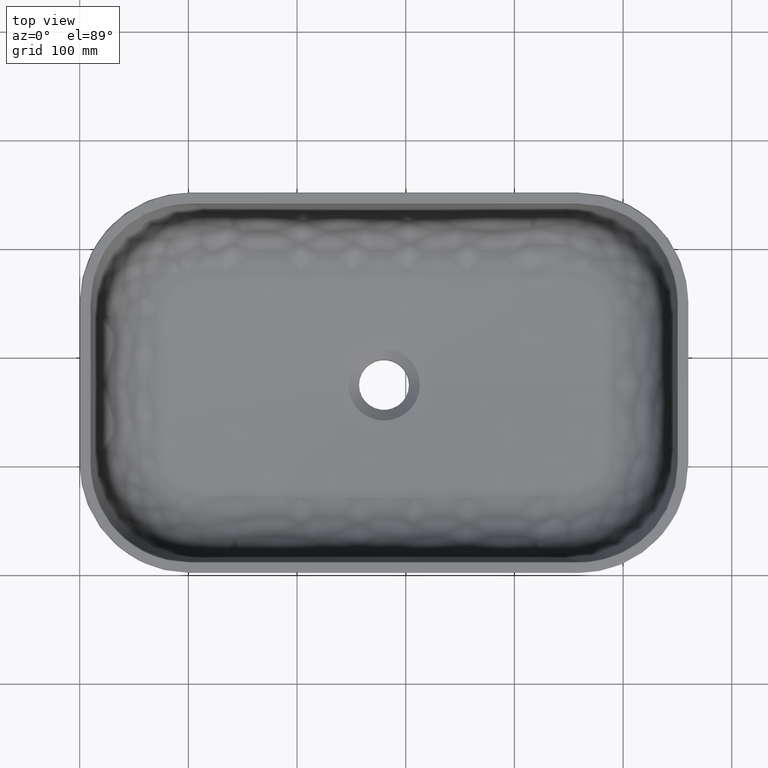
[diagram: clean part render]
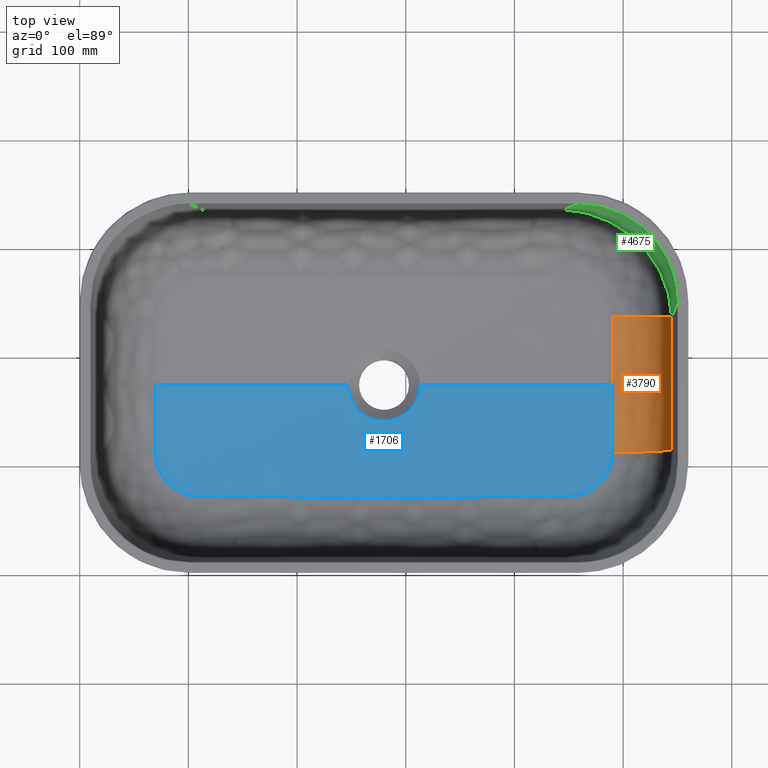
[diagram: same view with three faces highlighted in distinct colors, each labeled with its STEP entity id]
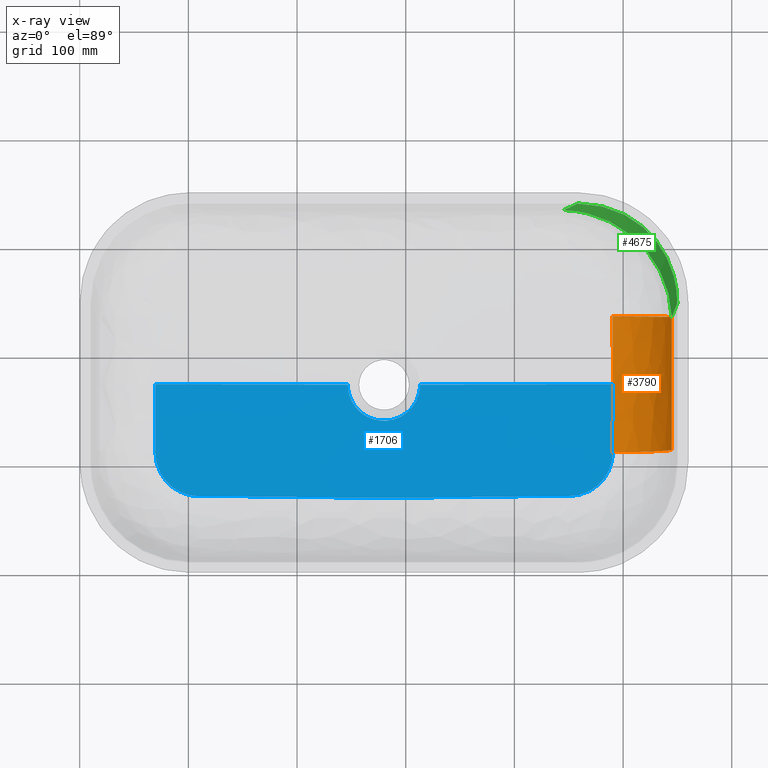
[diagram: x-ray of the same camera — body ghosted, the three highlighted faces saturated]
A machine part, top view with three faces highlighted in distinct colors.
The next image is the same camera in x-ray (body ghosted, the three faces saturated) — at least one of them is partly hidden behind the body in this view.
Their STEP definitions:

[orange] entity #3790 — the highlighted face is a freeform B-spline surface patch.
#28 = CARTESIAN_POINT ( 'NONE',  ( 544.7628117015480029, 113.9064825408459996, 82.73546895076619023 ) ) ;
#131 =( BOUNDED_CURVE ( )  B_SPLINE_CURVE ( 2, ( #4618, #1689, #2212 ),
 .UNSPECIFIED., .F., .T. ) 
 B_SPLINE_CURVE_WITH_KNOTS ( ( 3, 3 ),
 ( 0.0000000000000000000, 1.000000000000000000 ),
 .UNSPECIFIED. ) 
 CURVE ( )  GEOMETRIC_REPRESENTATION_ITEM ( )  RATIONAL_B_SPLINE_CURVE ( ( 1.000000000000000000, 0.7814624584036869992, 1.000000000000000000 ) ) 
 REPRESENTATION_ITEM ( '' )  );
#183 = B_SPLINE_CURVE_WITH_KNOTS ( 'NONE', 3,
 ( #300, #3139, #3550, #1868, #4442, #5238, #4415, #1982, #2844, #4529, #4843, #3666, #1064 ),
 .UNSPECIFIED., .F., .F.,
 ( 4, 3, 3, 3, 4 ),
 ( -16.67833232556730039, 4.313605181860090454, 44.42205229993170690, 84.53049941800350098, 105.5224396089389955 ),
 .UNSPECIFIED. ) ;
#287 = EDGE_CURVE ( 'NONE', #1626, #3137, #4923, .T. ) ;
#300 = CARTESIAN_POINT ( 'NONE',  ( 544.7628114651070064, 236.0935169723240108, 82.73546726840039867 ) ) ;
#391 = CARTESIAN_POINT ( 'NONE',  ( 490.4832826035750486, 175.0000182176680141, 30.40918630765279573 ) ) ;
#449 = CARTESIAN_POINT ( 'NONE',  ( 490.4654276874123866, 175.0000019029473322, 30.52607303514938053 ) ) ;
#681 = CARTESIAN_POINT ( 'NONE',  ( 490.4654269152235315, 161.2899971697960098, 30.52607347521891512 ) ) ;
#749 = CARTESIAN_POINT ( 'NONE',  ( 538.0976827723451379, 112.6856653351559743, 35.31060495057482740 ) ) ;
#835 = CARTESIAN_POINT ( 'NONE',  ( 544.6356240991390223, 175.0000015210030142, 81.83048213553090022 ) ) ;
#1064 = CARTESIAN_POINT ( 'NONE',  ( 544.7628117015480029, 113.9064825408459996, 82.73546895076619023 ) ) ;
#1092 = VERTEX_POINT ( 'NONE', #1313 ) ;
#1136 = CARTESIAN_POINT ( 'NONE',  ( 544.7628117034599882, 113.9064820019750073, 82.73546896437019882 ) ) ;
#1163 = ORIENTED_EDGE ( 'NONE', *, *, #5075, .T. ) ;
#1297 = CARTESIAN_POINT ( 'NONE',  ( 490.3807725911519810, 230.4328943166948704, 31.13757657831372327 ) ) ;
#1313 = CARTESIAN_POINT ( 'NONE',  ( 490.4654286002469803, 174.9999999999950262, 30.52606214913650007 ) ) ;
#1626 = VERTEX_POINT ( 'NONE', #3708 ) ;
#1689 = CARTESIAN_POINT ( 'NONE',  ( 538.0976827723450242, 112.6856653351559743, 35.31060495057482029 ) ) ;
#1868 = CARTESIAN_POINT ( 'NONE',  ( 544.7003717999100445, 215.1064582872870119, 82.29118596518938489 ) ) ;
#1982 = CARTESIAN_POINT ( 'NONE',  ( 544.6520515127019735, 161.6305280159419908, 81.94736925660919269 ) ) ;
#1993 = CARTESIAN_POINT ( 'NONE',  ( 538.0294181851330677, 209.4494192156952295, 34.82488459585057683 ) ) ;
#2023 = CARTESIAN_POINT ( 'NONE',  ( 538.0976825690398755, 237.3143555786683976, 35.31060580565991103 ) ) ;
#2080 = CARTESIAN_POINT ( 'NONE',  ( 544.6770767032730873, 141.2637455135640323, 82.12543273989351178 ) ) ;
#2212 = CARTESIAN_POINT ( 'NONE',  ( 544.7628117015480029, 113.9064825408459996, 82.73546895076619023 ) ) ;
#2290 = CARTESIAN_POINT ( 'NONE',  ( 490.4654286002469803, 174.9999999999950262, 30.52606214913650007 ) ) ;
#2423 = CARTESIAN_POINT ( 'NONE',  ( 490.3589407440750279, 237.5846780987569957, 31.31416093857779970 ) ) ;
#2435 = CARTESIAN_POINT ( 'NONE',  ( 490.3589398621650162, 237.5846778363759881, 31.31417145552470416 ) ) ;
#2447 = VERTEX_POINT ( 'NONE', #28 ) ;
#2459 = CARTESIAN_POINT ( 'NONE',  ( 490.3589407440750279, 237.5846780987569957, 31.31416093857779970 ) ) ;
#2521 = CARTESIAN_POINT ( 'NONE',  ( 538.0778100413519951, 119.8076601882529673, 35.16921054403022850 ) ) ;
#2604 = EDGE_LOOP ( 'NONE', ( #4780, #5164, #2729, #1163, #4486 ) ) ;
#2625 = CARTESIAN_POINT ( 'NONE',  ( 490.3589373202569845, 112.4153322283969914, 31.31416188137940182 ) ) ;
#2729 = ORIENTED_EDGE ( 'NONE', *, *, #3095, .T. ) ;
#2758 = CARTESIAN_POINT ( 'NONE',  ( 490.3589407440750279, 237.5846780987569957, 31.31416093857779970 ) ) ;
#2828 = CARTESIAN_POINT ( 'NONE',  ( 538.0778101343687467, 230.1923595163468406, 35.16921120591538141 ) ) ;
#2844 = CARTESIAN_POINT ( 'NONE',  ( 544.6684789282769543, 148.2610545393380050, 82.06425639200999456 ) ) ;
#2935 = CARTESIAN_POINT ( 'NONE',  ( 490.4382298107580027, 209.5955309700879923, 30.70413484643530211 ) ) ;
#3095 = EDGE_CURVE ( 'NONE', #1092, #5305, #3147, .T. ) ;
#3137 = VERTEX_POINT ( 'NONE', #2758 ) ;
#3139 = CARTESIAN_POINT ( 'NONE',  ( 544.7379926736709876, 229.0984865714879959, 82.55887239127069677 ) ) ;
#3147 = B_SPLINE_CURVE_WITH_KNOTS ( 'NONE', 3,
 ( #2290, #681, #3195, #4873, #4078 ),
 .UNSPECIFIED., .F., .F.,
 ( 4, 1, 4 ),
 ( 0.0000000000000000000, 0.6564352040642799091, 1.000000000000000000 ),
 .UNSPECIFIED. ) ;
#3195 = CARTESIAN_POINT ( 'NONE',  ( 490.4382259323484732, 140.4044394336091273, 30.70413695132830867 ) ) ;
#3215 = EDGE_CURVE ( 'NONE', #1626, #2447, #183, .T. ) ;
#3264 = CARTESIAN_POINT ( 'NONE',  ( 490.3589363764500035, 112.4153325091919982, 31.31417313645409806 ) ) ;
#3550 = CARTESIAN_POINT ( 'NONE',  ( 544.7170639939440662, 222.1027405383520090, 82.40995709721559592 ) ) ;
#3563 = B_SPLINE_CURVE_WITH_KNOTS ( 'NONE', 3,
 ( #2459, #1297, #4172, #4590, #449, #3750 ),
 .UNSPECIFIED., .F., .F.,
 ( 4, 1, 1, 4 ),
 ( 0.0000000000000000000, 0.3435647047510571039, 0.9999999093274837270, 1.000000000000000000 ),
 .UNSPECIFIED. ) ;
#3666 = CARTESIAN_POINT ( 'NONE',  ( 544.7379932842820836, 120.9015125155240042, 82.55887673599301024 ) ) ;
#3677 = CARTESIAN_POINT ( 'NONE',  ( 490.4382259375670401, 140.4044413260439796, 30.70413691196315042 ) ) ;
#3707 = CARTESIAN_POINT ( 'NONE',  ( 490.3807649754980389, 119.5671159024620067, 31.13758092176290049 ) ) ;
#3708 = CARTESIAN_POINT ( 'NONE',  ( 544.7628114651070064, 236.0935169723240108, 82.73546726840039867 ) ) ;
#3750 = CARTESIAN_POINT ( 'NONE',  ( 490.4654286002469803, 174.9999999999950262, 30.52606214913650007 ) ) ;
#3752 = CARTESIAN_POINT ( 'NONE',  ( 537.9970371708039920, 175.0000369345829654, 34.59448170576636983 ) ) ;
#3790 = ADVANCED_FACE ( 'NONE', ( #4916 ), #4680, .T. ) ;
#4051 = CARTESIAN_POINT ( 'NONE',  ( 544.7628114651070064, 236.0935169723240108, 82.73546726840039867 ) ) ;
#4078 = CARTESIAN_POINT ( 'NONE',  ( 490.3589373202569845, 112.4153322283969914, 31.31416188137940182 ) ) ;
#4090 = CARTESIAN_POINT ( 'NONE',  ( 544.6770764129820463, 208.7362514970969869, 82.12543067436489252 ) ) ;
#4118 = CARTESIAN_POINT ( 'NONE',  ( 544.7379926757729436, 229.0984871023169660, 82.55887240622949719 ) ) ;
#4172 = CARTESIAN_POINT ( 'NONE',  ( 490.4382298107819906, 209.5955309700879354, 30.70413484643738400 ) ) ;
#4415 = CARTESIAN_POINT ( 'NONE',  ( 544.6520514553769772, 175.0000004746959803, 81.94736884872330052 ) ) ;
#4442 = CARTESIAN_POINT ( 'NONE',  ( 544.6684786989779923, 201.7389443743539914, 82.06425476046651113 ) ) ;
#4486 = ORIENTED_EDGE ( 'NONE', *, *, #3215, .F. ) ;
#4513 = CARTESIAN_POINT ( 'NONE',  ( 544.7379932862049827, 120.9015120416110136, 82.55887674967931389 ) ) ;
#4529 = CARTESIAN_POINT ( 'NONE',  ( 544.7003722047469410, 134.8935412315260010, 82.29118884574619130 ) ) ;
#4590 = CARTESIAN_POINT ( 'NONE',  ( 490.4654284571030303, 188.7100085237032658, 30.52607261127543126 ) ) ;
#4618 = CARTESIAN_POINT ( 'NONE',  ( 490.3589373202569845, 112.4153322283969914, 31.31416188137940182 ) ) ;
#4620 = CARTESIAN_POINT ( 'NONE',  ( 538.0294181131919231, 140.5505247355050358, 34.82488408396652346 ) ) ;
#4680 =( BOUNDED_SURFACE ( )  B_SPLINE_SURFACE ( 2, 3, ( 
 ( #4947, #4118, #4090, #835, #2080, #4513, #1136 ),
 ( #2023, #2828, #1993, #3752, #4620, #2521, #749 ),
 ( #2435, #5420, #2935, #391, #3677, #3707, #3264 ) ),
 .UNSPECIFIED., .F., .F., .F. ) 
 B_SPLINE_SURFACE_WITH_KNOTS ( ( 3, 3 ),
 ( 4, 1, 1, 1, 4 ),
 ( 0.0000000000000000000, 83.17495397387101264 ),
 ( -16.67833232556730039, 4.313605181860089566, 44.42205229993169979, 84.53049941800350098, 105.5224396089389955 ),
 .UNSPECIFIED. ) 
 GEOMETRIC_REPRESENTATION_ITEM ( )  RATIONAL_B_SPLINE_SURFACE ( (
 ( 1.000000000000000000, 1.000000000000000000, 1.000000000000000000, 1.000000000000000000, 1.000000000000000000, 1.000000000000000000, 1.000000000000000000),
 ( 0.7814624965855979655, 0.7817088526152299321, 0.7823335192989190334, 0.7827894446479709556, 0.7823334977269880142, 0.7817088103047360459, 0.7814624584036869992),
 ( 1.000000000000000000, 1.000000000000000000, 1.000000000000000000, 1.000000000000000000, 1.000000000000000000, 1.000000000000000000, 1.000000000000000000) ) ) 
 REPRESENTATION_ITEM ( '' )  SURFACE ( )  );
#4780 = ORIENTED_EDGE ( 'NONE', *, *, #287, .T. ) ;
#4843 = CARTESIAN_POINT ( 'NONE',  ( 544.7170644927870171, 127.8972584027970072, 82.40996064666370557 ) ) ;
#4873 = CARTESIAN_POINT ( 'NONE',  ( 490.3807649754980389, 119.5671159024620067, 31.13758092176290049 ) ) ;
#4916 = FACE_OUTER_BOUND ( 'NONE', #2604, .T. ) ;
#4923 =( BOUNDED_CURVE ( )  B_SPLINE_CURVE ( 2, ( #4051, #5355, #2423 ),
 .UNSPECIFIED., .F., .T. ) 
 B_SPLINE_CURVE_WITH_KNOTS ( ( 3, 3 ),
 ( 0.0000000000000000000, 1.000000000000000000 ),
 .UNSPECIFIED. ) 
 CURVE ( )  GEOMETRIC_REPRESENTATION_ITEM ( )  RATIONAL_B_SPLINE_CURVE ( ( 1.000000000000000000, 0.7814624965855979655, 1.000000000000000000 ) ) 
 REPRESENTATION_ITEM ( '' )  );
#4947 = CARTESIAN_POINT ( 'NONE',  ( 544.7628114672201036, 236.0935175681090072, 82.73546728344140888 ) ) ;
#5046 = EDGE_CURVE ( 'NONE', #3137, #1092, #3563, .T. ) ;
#5075 = EDGE_CURVE ( 'NONE', #5305, #2447, #131, .T. ) ;
#5164 = ORIENTED_EDGE ( 'NONE', *, *, #5046, .T. ) ;
#5238 = CARTESIAN_POINT ( 'NONE',  ( 544.6520513980520946, 188.3694729334490034, 81.94736844083739413 ) ) ;
#5305 = VERTEX_POINT ( 'NONE', #2625 ) ;
#5355 = CARTESIAN_POINT ( 'NONE',  ( 538.0976825690398755, 237.3143555786683976, 35.31060580565991103 ) ) ;
#5420 = CARTESIAN_POINT ( 'NONE',  ( 490.3807725911279931, 230.4328943166950125, 31.13757657831170178 ) ) ;

[blue] entity #1706 — the highlighted face is a freeform B-spline surface patch.
#14 = CARTESIAN_POINT ( 'NONE',  ( 165.9491139495495418, 71.95615242904770525, 25.56004883679827344 ) ) ;
#33 = CARTESIAN_POINT ( 'NONE',  ( 490.3589373202569845, 112.4153322283969914, 31.31416188137940182 ) ) ;
#41 = CARTESIAN_POINT ( 'NONE',  ( 236.5030403532173580, 71.14405305468980600, 21.96381899897194501 ) ) ;
#66 = CARTESIAN_POINT ( 'NONE',  ( 335.8063770177426477, 71.29862404772451612, 22.41493164668897720 ) ) ;
#81 = CARTESIAN_POINT ( 'NONE',  ( 70.36218505153833291, 104.8288961095478129, 31.45399810731154489 ) ) ;
#93 = CARTESIAN_POINT ( 'NONE',  ( 222.4068568507273937, 71.32169281394236293, 22.48534853170739112 ) ) ;
#109 = CARTESIAN_POINT ( 'NONE',  ( 72.47712951900487610, 97.50049573691944715, 31.49350016282802400 ) ) ;
#124 = CARTESIAN_POINT ( 'NONE',  ( 323.2413640503586407, 71.14093378709412718, 21.95545236770622921 ) ) ;
#136 = CARTESIAN_POINT ( 'NONE',  ( 70.30190858782994212, 105.1540421486600394, 31.44999073309665860 ) ) ;
#139 = B_SPLINE_CURVE_WITH_KNOTS ( 'NONE', 3,
 ( #3655, #3184, #671, #2302, #2385, #2354, #1472, #4520, #727, #1174, #4862, #2864, #201, #3156, #4096, #4893, #1083, #1886, #318, #4834, #1112, #4069, #290, #5343, #1054, #2748, #1999, #3684, #3326, #3817, #4597, #2139, #4234, #4153, #3382, #3299, #815, #3354, #1721, #756, #2500, #4181, #4125, #3713, #1305, #2917, #2941, #2088, #2968, #4978, #1197, #1250, #33 ),
 .UNSPECIFIED., .F., .F.,
 ( 4, 2, 2, 2, 2, 2, 2, 2, 2, 2, 2, 2, 2, 2, 2, 2, 2, 2, 2, 1, 2, 2, 2, 1, 1, 2, 2, 4 ),
 ( 0.0000000000000000000, 0.03125000000000080491, 0.06250000000000160982, 0.1250000000000032196, 0.1562500000000040246, 0.1875000000000048295, 0.2187500000000056344, 0.2500000000000064393, 0.2812500000000072164, 0.3125000000000080491, 0.3437500000000088818, 0.3750000000000096589, 0.4062500000000104361, 0.4375000000000112688, 0.4687500000000121014, 0.5000000000000128786, 0.5625000000000144329, 0.6250000000000160982, 0.6875000000000177636, 0.7187500000000188738, 0.7343750000000193179, 0.7500000000000198730, 0.8125000000000178746, 0.8437500000000166533, 0.8593750000000158762, 0.8671875000000155431, 0.8750000000000152101, 1.000000000000000000 ),
 .UNSPECIFIED. ) ;
#151 = CARTESIAN_POINT ( 'NONE',  ( 236.3670248892890982, 71.14569205012611519, 21.96828841258298226 ) ) ;
#163 = CARTESIAN_POINT ( 'NONE',  ( 69.71272923446535685, 109.7507542960676687, 31.37558865889379689 ) ) ;
#201 = CARTESIAN_POINT ( 'NONE',  ( 462.8202971533023629, 74.24804983390905022, 30.37559158101365497 ) ) ;
#247 = CARTESIAN_POINT ( 'NONE',  ( 107.4385084412881071, 72.26632837501453821, 29.68287303184892423 ) ) ;
#256 = CARTESIAN_POINT ( 'NONE',  ( 387.2473808536267939, 71.89860425086018836, 25.12838199345896584 ) ) ;
#285 = CARTESIAN_POINT ( 'NONE',  ( 385.6632856594402483, 71.88431135923829629, 25.02964887716176534 ) ) ;
#290 = CARTESIAN_POINT ( 'NONE',  ( 471.7303110601303615, 78.43031740723907319, 30.89461206419128203 ) ) ;
#315 = CARTESIAN_POINT ( 'NONE',  ( 394.0324609750538798, 71.95652384559232928, 25.55768120494344942 ) ) ;
#318 = CARTESIAN_POINT ( 'NONE',  ( 468.2833223454713902, 76.49191579087388959, 30.70378486111462024 ) ) ;
#326 = CARTESIAN_POINT ( 'NONE',  ( 126.6727871098169658, 72.16924403123968546, 28.26470660204640595 ) ) ;
#341 = CARTESIAN_POINT ( 'NONE',  ( 351.7981909462638441, 71.50638840168092258, 23.13004233544859645 ) ) ;
#351 = CARTESIAN_POINT ( 'NONE',  ( 130.8559713124081725, 72.15580174549232595, 27.96278524430785595 ) ) ;
#367 = CARTESIAN_POINT ( 'NONE',  ( 365.9602915388281303, 71.67930628064836185, 23.87166759418305162 ) ) ;
#381 = CARTESIAN_POINT ( 'NONE',  ( 172.6479717722282317, 71.89960317493968489, 25.13492306077442606 ) ) ;
#393 = CARTESIAN_POINT ( 'NONE',  ( 280.0000000000000000, 142.0000011378139959, 15.00000000000000000 ) ) ;
#407 = CARTESIAN_POINT ( 'NONE',  ( 201.1181646335671189, 71.59504232037696170, 23.48861516470259758 ) ) ;
#423 = CARTESIAN_POINT ( 'NONE',  ( 429.1167899537095991, 72.15574429746990859, 27.96082629127148778 ) ) ;
#439 = CARTESIAN_POINT ( 'NONE',  ( 172.6872400483289880, 71.89925360444881619, 25.13246675705206457 ) ) ;
#450 = CARTESIAN_POINT ( 'NONE',  ( 684.5806223838911819, -229.5806223838909546, 47.50909214404347125 ) ) ;
#468 = CARTESIAN_POINT ( 'NONE',  ( 287.2422186544754368, 70.84973228022158764, 21.24139329369750229 ) ) ;
#481 = CARTESIAN_POINT ( 'NONE',  ( 70.68482069237445842, 103.1934621736202615, 31.47284578863851578 ) ) ;
#495 = CARTESIAN_POINT ( 'NONE',  ( 257.9902824163256696, 70.92772401264853954, 21.41940787669827984 ) ) ;
#520 = CARTESIAN_POINT ( 'NONE',  ( 340.3254789997542389, 71.35760086758548937, 22.60432359641833244 ) ) ;
#526 = EDGE_CURVE ( 'NONE', #4944, #2497, #659, .T. ) ;
#547 = CARTESIAN_POINT ( 'NONE',  ( 301.6728542774031325, 70.92527326774848007, 21.41356445982680867 ) ) ;
#573 = CARTESIAN_POINT ( 'NONE',  ( 301.7317080289079172, 70.92570755465673926, 21.41457843858111332 ) ) ;
#574 = CARTESIAN_POINT ( 'NONE',  ( 69.64107231024848943, 112.4153381713429951, 31.31417020388090222 ) ) ;
#646 = CARTESIAN_POINT ( 'NONE',  ( 69.54779664741640488, 154.1466475399097078, 30.61382989231121954 ) ) ;
#659 = B_SPLINE_CURVE_WITH_KNOTS ( 'NONE', 3,
 ( #3133, #4762, #3933, #3908, #646, #1890, #4330, #957, #4731, #1839, #2646, #1814, #3569, #4434, #2330, #574 ),
 .UNSPECIFIED., .F., .F.,
 ( 4, 2, 2, 1, 1, 1, 1, 2, 2, 4 ),
 ( 0.0000000000000000000, 0.2499999999999771294, 0.3749999999999656941, 0.4374999999999593103, 0.4687499999999561462, 0.4843749999999545364, 0.4921874999999537592, 0.4960937499999533151, 0.4999999999999529265, 1.000000000000000000 ),
 .UNSPECIFIED. ) ;
#668 = CARTESIAN_POINT ( 'NONE',  ( 357.1108621356804633, 71.57290392900107179, 23.39896691467021128 ) ) ;
#671 = CARTESIAN_POINT ( 'NONE',  ( 451.2596649720852611, 72.21972436983541854, 29.58730362189986351 ) ) ;
#681 = CARTESIAN_POINT ( 'NONE',  ( 490.4654269152235315, 161.2899971697960098, 30.52607347521891512 ) ) ;
#690 = CARTESIAN_POINT ( 'NONE',  ( 102.8976436022962986, 72.81985921423077457, 30.00122403653782044 ) ) ;
#698 = CARTESIAN_POINT ( 'NONE',  ( 369.5382978269106502, 71.72058644712950581, 24.06937311712079719 ) ) ;
#727 = CARTESIAN_POINT ( 'NONE',  ( 459.0272603535104849, 73.20376475820154383, 30.13066129727893028 ) ) ;
#739 = CARTESIAN_POINT ( 'NONE',  ( 151.6695990314179880, 72.05663173705870861, 26.50629588297943684 ) ) ;
#752 = CARTESIAN_POINT ( 'NONE',  ( 406.6484976752909688, 72.04619914867213026, 26.39234871930795379 ) ) ;
#756 = CARTESIAN_POINT ( 'NONE',  ( 486.7456226852261238, 95.66377749356729510, 31.48679936091138742 ) ) ;
#766 = CARTESIAN_POINT ( 'NONE',  ( 117.1977789528774139, 72.19283458262142972, 28.95763639390547084 ) ) ;
#780 = CARTESIAN_POINT ( 'NONE',  ( 361.6027016001248171, 71.62783153009782211, 23.63493233631961488 ) ) ;
#795 = CARTESIAN_POINT ( 'NONE',  ( 151.0299828007989618, 72.06050376139927494, 26.54976955449010489 ) ) ;
#815 = CARTESIAN_POINT ( 'NONE',  ( 484.9425087223622768, 92.11228857016386939, 31.45362133478994693 ) ) ;
#823 = CARTESIAN_POINT ( 'NONE',  ( 197.5125814908288646, 71.63921423319274595, 23.67975953712727488 ) ) ;
#845 = CARTESIAN_POINT ( 'NONE',  ( 193.8244284542605271, 71.68177631785304982, 23.88355762056587750 ) ) ;
#856 = CARTESIAN_POINT ( 'NONE',  ( 280.0000000000000000, -229.5806223838910114, 47.50909214404349257 ) ) ;
#872 = CARTESIAN_POINT ( 'NONE',  ( 322.6382275496904413, 71.13370932663137580, 21.93584681593238983 ) ) ;
#883 = CARTESIAN_POINT ( 'NONE',  ( 69.53466960099980554, 175.0000000000000000, 30.52620467834089979 ) ) ;
#901 = CARTESIAN_POINT ( 'NONE',  ( 308.9178977960858674, 70.98473312650369849, 21.55334683306862331 ) ) ;
#929 = CARTESIAN_POINT ( 'NONE',  ( 257.4342704931829644, 70.93191467661647209, 21.42920324580367364 ) ) ;
#945 = CARTESIAN_POINT ( 'NONE',  ( 69.64107231024848943, 112.4153381713429951, 31.31417020388090222 ) ) ;
#956 = CARTESIAN_POINT ( 'NONE',  ( 300.1866331813928355, 70.91462033850191915, 21.38870010273769395 ) ) ;
#957 = CARTESIAN_POINT ( 'NONE',  ( 69.55954991188299630, 145.9745424878787503, 30.69817718669120055 ) ) ;
#968 = CARTESIAN_POINT ( 'NONE',  ( 82.02038680340052679, 83.29571455320395046, 31.20169392050448209 ) ) ;
#980 = CARTESIAN_POINT ( 'NONE',  ( 256.6554485286076783, 70.93792066255412010, 21.44326544407060453 ) ) ;
#992 = CARTESIAN_POINT ( 'NONE',  ( 85.02678301228937130, 80.70446552576098043, 31.06095697295949520 ) ) ;
#1004 = CARTESIAN_POINT ( 'NONE',  ( 408.1394816371823708, 72.05546720275842176, 26.49333422954717676 ) ) ;
#1049 =( BOUNDED_CURVE ( )  B_SPLINE_CURVE ( 2, ( #4670, #2580, #4259, #3514, #5115 ),
 .UNSPECIFIED., .F., .F. ) 
 B_SPLINE_CURVE_WITH_KNOTS ( ( 3, 2, 3 ),
 ( 104.9324700760979994, 157.3987051141479867, 209.8649401521969935 ),
 .UNSPECIFIED. ) 
 CURVE ( )  GEOMETRIC_REPRESENTATION_ITEM ( )  RATIONAL_B_SPLINE_CURVE ( ( 1.000000000000000000, 0.7071067811865480168, 1.000000000000000000, 0.7071067811865480168, 1.000000000000000000 ) ) 
 REPRESENTATION_ITEM ( '' )  );
#1054 = CARTESIAN_POINT ( 'NONE',  ( 473.3798980262716327, 79.52679629472740430, 30.98095145598943390 ) ) ;
#1083 = CARTESIAN_POINT ( 'NONE',  ( 466.4986872412660546, 75.65493767496712962, 30.59989935961810659 ) ) ;
#1092 = VERTEX_POINT ( 'NONE', #1313 ) ;
#1108 = CARTESIAN_POINT ( 'NONE',  ( 344.0955221647296298, 71.40687120892420126, 22.77059671962826926 ) ) ;
#1112 = CARTESIAN_POINT ( 'NONE',  ( 470.0337419957744487, 77.42027841172507863, 30.80236899030882824 ) ) ;
#1140 = CARTESIAN_POINT ( 'NONE',  ( 407.4427886736129381, 72.05117102410792995, 26.44609406901201609 ) ) ;
#1169 = CARTESIAN_POINT ( 'NONE',  ( 362.9614041094548611, 71.64415814103578839, 23.70772360876472717 ) ) ;
#1174 = CARTESIAN_POINT ( 'NONE',  ( 460.3002282939517613, 73.51077277872994387, 30.21436870095905647 ) ) ;
#1180 = CARTESIAN_POINT ( 'NONE',  ( 172.5563227654186846, 71.90041820147513363, 25.14065747885078039 ) ) ;
#1193 = CARTESIAN_POINT ( 'NONE',  ( 407.8407058995859416, 72.05363226506928243, 26.47306410594134363 ) ) ;
#1197 = CARTESIAN_POINT ( 'NONE',  ( 490.0881856809700707, 107.0993901850954444, 31.42799680418516317 ) ) ;
#1218 = CARTESIAN_POINT ( 'NONE',  ( 449.9588752216869807, 72.20320586202069535, 29.49054255067970232 ) ) ;
#1233 = CARTESIAN_POINT ( 'NONE',  ( 192.3575413301510935, 71.69858643361673955, 23.96498753502199364 ) ) ;
#1243 = CARTESIAN_POINT ( 'NONE',  ( 313.3140978340319975, 175.0000000000000000, 15.02748009926169992 ) ) ;
#1247 = CARTESIAN_POINT ( 'NONE',  ( 429.1014511687013169, 72.15569105726228827, 27.95972424274342316 ) ) ;
#1250 = CARTESIAN_POINT ( 'NONE',  ( 490.3509679026766435, 109.7441771834425026, 31.38011180198579098 ) ) ;
#1258 = CARTESIAN_POINT ( 'NONE',  ( 212.0944066482847177, 71.45627067612223016, 22.94577419422771669 ) ) ;
#1287 = CARTESIAN_POINT ( 'NONE',  ( 168.5159584167398634, 71.93514798922943498, 25.39580714291026098 ) ) ;
#1305 = CARTESIAN_POINT ( 'NONE',  ( 488.8010647564994997, 101.2658350304611901, 31.48606728666409538 ) ) ;
#1313 = CARTESIAN_POINT ( 'NONE',  ( 490.4654286002469803, 174.9999999999950262, 30.52606214913650007 ) ) ;
#1315 = VERTEX_POINT ( 'NONE', #2835 ) ;
#1316 = CARTESIAN_POINT ( 'NONE',  ( 258.1554045856388484, 70.92649394778622707, 21.41653479492462964 ) ) ;
#1328 = CARTESIAN_POINT ( 'NONE',  ( 88.26793532600567005, 78.43144770667797161, 30.89470502119346307 ) ) ;
#1343 = CARTESIAN_POINT ( 'NONE',  ( 294.4937059238928896, 70.88003910026860410, 21.30867672376577460 ) ) ;
#1370 = CARTESIAN_POINT ( 'NONE',  ( 249.2795857469865837, 71.00303019475062172, 21.59889518528444796 ) ) ;
#1384 = CARTESIAN_POINT ( 'NONE',  ( 82.50268533478551092, 82.84359644706300685, 31.18010903685518898 ) ) ;
#1399 = CARTESIAN_POINT ( 'NONE',  ( 236.4486371945305336, 71.14470847984192403, 21.96560578692186994 ) ) ;
#1401 = EDGE_CURVE ( 'NONE', #3935, #5305, #139, .T. ) ;
#1414 = CARTESIAN_POINT ( 'NONE',  ( 90.54597917501139648, 77.10055415182020511, 30.77009310370124595 ) ) ;
#1425 = CARTESIAN_POINT ( 'NONE',  ( 321.8350758935910676, 71.12415551504501821, 21.91005985393814015 ) ) ;
#1472 = CARTESIAN_POINT ( 'NONE',  ( 456.4596312789663557, 72.69698995787547346, 29.95781221681788864 ) ) ;
#1491 = CARTESIAN_POINT ( 'NONE',  ( 97.17965249345343182, 74.24806431626907965, 30.37559482755141715 ) ) ;
#1517 = CARTESIAN_POINT ( 'NONE',  ( 104.8357815646118354, 72.52819319667307241, 29.86742845588951667 ) ) ;
#1525 = CARTESIAN_POINT ( 'NONE',  ( 344.4977480774737160, 71.41211138034927330, 22.78878326866724890 ) ) ;
#1557 = CARTESIAN_POINT ( 'NONE',  ( 365.3584295953100423, 71.67232885232853334, 23.83851391372304818 ) ) ;
#1583 = CARTESIAN_POINT ( 'NONE',  ( 247.0000011378142233, 142.0000011378139675, 15.00000000000000000 ) ) ;
#1585 = CARTESIAN_POINT ( 'NONE',  ( 425.9711757778476908, 72.14426483493507192, 27.73552163748428256 ) ) ;
#1597 = CARTESIAN_POINT ( 'NONE',  ( 130.7790834304496173, 72.15606808318362653, 27.96831024494916917 ) ) ;
#1610 = CARTESIAN_POINT ( 'NONE',  ( 364.5575716274419165, 71.66298309786157006, 23.79459280462462445 ) ) ;
#1619 = CARTESIAN_POINT ( 'NONE',  ( 155.4060314195904766, 72.03382173780188680, 26.25262417851728713 ) ) ;
#1646 = CARTESIAN_POINT ( 'NONE',  ( 172.0057835559752561, 71.90529060917882020, 25.17514918358537557 ) ) ;
#1664 = CARTESIAN_POINT ( 'NONE',  ( 442.7302735953832098, 72.19489233878431378, 28.94983585907519696 ) ) ;
#1679 = CARTESIAN_POINT ( 'NONE',  ( 206.4308420366104713, 71.52853299370217144, 23.21968968960916158 ) ) ;
#1704 = CARTESIAN_POINT ( 'NONE',  ( 151.5783173331774378, 72.05718743729777032, 26.51249545886322423 ) ) ;
#1706 = ADVANCED_FACE ( 'NONE', ( #4175 ), #3059, .T. ) ;
#1713 = CARTESIAN_POINT ( 'NONE',  ( 69.53466960099980554, 175.0000000000000000, 30.52620467834089979 ) ) ;
#1721 = CARTESIAN_POINT ( 'NONE',  ( 486.3303175395502080, 94.75651750067035550, 31.48137971819916459 ) ) ;
#1732 = CARTESIAN_POINT ( 'NONE',  ( 251.0741596512945932, 70.98580554077095428, 21.55705057553871384 ) ) ;
#1745 = CARTESIAN_POINT ( 'NONE',  ( 87.16556500364765725, 79.15106300585237875, 30.95278444515952643 ) ) ;
#1760 = CARTESIAN_POINT ( 'NONE',  ( 337.6057866228940156, 71.32206254653365818, 22.48868660149577892 ) ) ;
#1774 = CARTESIAN_POINT ( 'NONE',  ( 79.28725199418224179, 86.17678280464615170, 31.31554247062500451 ) ) ;
#1788 = CARTESIAN_POINT ( 'NONE',  ( 227.7670113696113390, 71.25264645449824741, 22.27409151251178088 ) ) ;
#1800 = CARTESIAN_POINT ( 'NONE',  ( 69.64506401635173916, 111.0797415700142921, 31.34712443232679036 ) ) ;
#1812 = CARTESIAN_POINT ( 'NONE',  ( 300.9865885559888738, 70.92027830173611846, 21.40190337165668311 ) ) ;
#1813 = EDGE_CURVE ( 'NONE', #5392, #4944, #4365, .T. ) ;
#1814 = CARTESIAN_POINT ( 'NONE',  ( 69.56321762270486886, 143.8447838729085504, 30.72438435458758477 ) ) ;
#1823 = CARTESIAN_POINT ( 'NONE',  ( 72.59902838947581927, 97.19493761635476403, 31.49288294486796858 ) ) ;
#1837 = CARTESIAN_POINT ( 'NONE',  ( 265.5367878971240998, 70.87182769603701615, 21.28889200913408430 ) ) ;
#1839 = CARTESIAN_POINT ( 'NONE',  ( 69.56249338865789866, 144.2545177104757954, 30.71922278363149417 ) ) ;
#1886 = CARTESIAN_POINT ( 'NONE',  ( 467.6940522685263204, 76.20375146374676945, 30.66985357363244447 ) ) ;
#1890 = CARTESIAN_POINT ( 'NONE',  ( 69.55303997811145678, 150.2270862035633172, 30.65137594923625031 ) ) ;
#1933 = CARTESIAN_POINT ( 'NONE',  ( 95.93932102048580646, 74.67690999709283517, 30.45272265250405752 ) ) ;
#1939 = CARTESIAN_POINT ( 'NONE',  ( 408.0398575444075959, 72.05485661113021933, 26.48657346492533904 ) ) ;
#1960 = CARTESIAN_POINT ( 'NONE',  ( 94.10718936717844940, 75.39460218952447690, 30.56388249934618173 ) ) ;
#1967 = CARTESIAN_POINT ( 'NONE',  ( 344.8428299227452953, 71.41660338141652176, 22.80444423375148233 ) ) ;
#1989 = CARTESIAN_POINT ( 'NONE',  ( 100.9698552968654184, 73.18845874631796278, 30.13143047974487132 ) ) ;
#1996 = CARTESIAN_POINT ( 'NONE',  ( 420.2063393724508273, 72.11993012439955919, 27.32710865264692046 ) ) ;
#1999 = CARTESIAN_POINT ( 'NONE',  ( 474.9718559003794098, 80.70337925465406670, 31.06089077302839740 ) ) ;
#2009 = CARTESIAN_POINT ( 'NONE',  ( 164.2196463317249027, 71.96972602891477777, 25.67191720380141007 ) ) ;
#2026 = CARTESIAN_POINT ( 'NONE',  ( 366.0607035968663467, 71.68046641163988397, 23.87721094497941721 ) ) ;
#2038 = CARTESIAN_POINT ( 'NONE',  ( 171.2700089748005041, 71.91174038777548105, 25.22136531330206921 ) ) ;
#2054 = CARTESIAN_POINT ( 'NONE',  ( 366.1479527471123561, 71.68147354177429520, 23.88203040362574825 ) ) ;
#2067 = CARTESIAN_POINT ( 'NONE',  ( 144.9975497584851496, 72.09442287462054821, 26.96383175235125407 ) ) ;
#2081 = CARTESIAN_POINT ( 'NONE',  ( 312.9999988621859757, 142.0000011378139675, 15.00000000000000000 ) ) ;
#2088 = CARTESIAN_POINT ( 'NONE',  ( 489.4399932193634868, 103.8503312877144822, 31.46495496858021923 ) ) ;
#2097 = CARTESIAN_POINT ( 'NONE',  ( 208.1858031833232303, 71.50629694715624396, 23.13301304516861734 ) ) ;
#2121 = CARTESIAN_POINT ( 'NONE',  ( 130.5057200185310364, 72.15700963410492363, 27.98796022015563878 ) ) ;
#2139 = CARTESIAN_POINT ( 'NONE',  ( 479.3930431322344248, 84.68887072735458332, 31.26313195864711147 ) ) ;
#2150 = CARTESIAN_POINT ( 'NONE',  ( 320.2322393203081674, 71.10532500888831464, 21.85969886836406317 ) ) ;
#2162 = CARTESIAN_POINT ( 'NONE',  ( 71.58278618190243492, 99.99531108454746686, 31.49176109317861005 ) ) ;
#2176 = CARTESIAN_POINT ( 'NONE',  ( 326.9236972223480961, 71.18525182404748364, 22.07618424892923059 ) ) ;
#2189 = CARTESIAN_POINT ( 'NONE',  ( 78.01650218049341845, 87.70987555600208907, 31.36341619254369562 ) ) ;
#2202 = CARTESIAN_POINT ( 'NONE',  ( 341.6904671561557052, 71.37546361600939804, 22.66339323455770938 ) ) ;
#2217 = CARTESIAN_POINT ( 'NONE',  ( 75.00236459486117724, 92.07530776786606452, 31.45831060766307630 ) ) ;
#2232 = CARTESIAN_POINT ( 'NONE',  ( 215.0461338503767195, 71.41805835068893771, 22.80949411492009204 ) ) ;
#2261 = CARTESIAN_POINT ( 'NONE',  ( 305.3443617191701946, 70.95246387397695287, 21.47705003816021119 ) ) ;
#2290 = CARTESIAN_POINT ( 'NONE',  ( 490.4654286002469803, 174.9999999999950262, 30.52606214913650007 ) ) ;
#2302 = CARTESIAN_POINT ( 'NONE',  ( 452.5617857537516215, 72.28178818042739806, 29.68230371345287111 ) ) ;
#2319 = CARTESIAN_POINT ( 'NONE',  ( 93.50125333908113134, 75.65496263391622733, 30.59990292138401813 ) ) ;
#2330 = CARTESIAN_POINT ( 'NONE',  ( 69.60894220374633790, 122.9536600851867689, 31.05391891012630978 ) ) ;
#2354 = CARTESIAN_POINT ( 'NONE',  ( 455.1660099366598047, 72.51301797940142535, 29.86814261466221865 ) ) ;
#2371 = CARTESIAN_POINT ( 'NONE',  ( 92.30588861501072984, 76.20377487657472670, 30.66985719645193242 ) ) ;
#2380 = CARTESIAN_POINT ( 'NONE',  ( 378.2563548124335284, 71.81279931100571901, 24.57816031435416093 ) ) ;
#2385 = CARTESIAN_POINT ( 'NONE',  ( 453.2145340684837720, 72.32819168418636480, 29.72932606571050584 ) ) ;
#2408 = CARTESIAN_POINT ( 'NONE',  ( 384.0740990777800334, 71.86963778252973611, 24.93125277967086362 ) ) ;
#2422 = CARTESIAN_POINT ( 'NONE',  ( 138.0529058529310475, 72.12822940602504218, 27.44891856625145721 ) ) ;
#2438 = CARTESIAN_POINT ( 'NONE',  ( 414.9841831838841699, 72.09490284976325825, 26.96169321820645592 ) ) ;
#2448 = CARTESIAN_POINT ( 'NONE',  ( 130.1408141702233365, 72.15825340203173255, 28.01420674113628451 ) ) ;
#2465 = CARTESIAN_POINT ( 'NONE',  ( 348.3202251307757251, 71.46184485363909289, 22.96262088826559022 ) ) ;
#2478 = CARTESIAN_POINT ( 'NONE',  ( 151.7087099000379453, 72.05639330489118777, 26.50364009495255146 ) ) ;
#2497 = VERTEX_POINT ( 'NONE', #3731 ) ;
#2500 = CARTESIAN_POINT ( 'NONE',  ( 487.0151379339943105, 96.27244649755795081, 31.48982274039786944 ) ) ;
#2508 = CARTESIAN_POINT ( 'NONE',  ( 186.9991163849909981, 71.75791826748898927, 24.26920073216401619 ) ) ;
#2516 = ORIENTED_EDGE ( 'NONE', *, *, #1813, .T. ) ;
#2535 = CARTESIAN_POINT ( 'NONE',  ( 193.0990845570281351, 71.69011729836087454, 23.92373170885430866 ) ) ;
#2562 = CARTESIAN_POINT ( 'NONE',  ( 323.0402444093908230, 71.13852006338046863, 21.94889191423131081 ) ) ;
#2569 = B_SPLINE_CURVE_WITH_KNOTS ( 'NONE', 3,
 ( #3220, #4583, #766, #3390, #5044, #326, #2899, #5069, #2448, #2121, #4133, #1597, #5410, #5437, #351, #2976, #2422, #3800, #2067, #4552, #3278, #4960, #795, #3335, #1704, #739, #2478, #4189, #3771, #1619, #4215, #2009, #14, #1287, #4632, #2038, #1646, #5462, #1180, #381, #439, #4107, #3691, #4162, #5383, #3740, #2508, #5017, #3307, #1233, #2535, #3719, #4987, #2870, #2925, #4605, #845, #823, #407, #1679, #2097, #3362, #1258, #2947, #3032, #5097, #4359, #3522, #2232, #4654, #3058, #93, #1788, #4761, #4705, #2645, #4272, #3449, #3422, #151, #1399, #41, #3499, #5186, #2671, #1370, #1732, #3475, #5157, #980, #929, #4329, #495, #5125, #1316, #1837, #3088, #3825, #468, #4243, #1343, #4730, #3003, #956, #1812, #5208, #4681, #547, #573, #2261, #901, #3876, #3931, #3907, #2150, #1425, #872, #2562, #124, #2592, #2615, #4301, #2176, #3850, #66, #1760, #520, #2202, #4890, #1108, #1525, #4485, #3623, #1967, #2697, #2465, #341, #668, #3294, #780, #1169, #1610, #1557, #2802, #367, #2026, #4384, #5339, #2054, #698, #4567, #2380, #4039, #4064, #2408, #285, #5423, #4784, #4148, #4517, #3652, #5398, #256, #3239, #315, #3732, #3109, #4919, #2859, #752, #1140, #1193, #1939, #1004, #5312, #4974, #2832, #4093, #2438, #1996, #3680, #5370, #1585, #3267, #4950, #4541, #4122, #2885, #5057, #1247, #423, #4666, #1664, #3755 ),
 .UNSPECIFIED., .F., .F.,
 ( 4, 2, 2, 1, 1, 1, 1, 1, 1, 2, 2, 2, 2, 1, 1, 1, 1, 1, 1, 2, 2, 2, 2, 1, 1, 1, 1, 1, 1, 2, 2, 2, 2, 1, 1, 1, 1, 1, 1, 2, 2, 2, 2, 1, 1, 1, 1, 1, 2, 2, 2, 2, 1, 1, 1, 1, 1, 2, 2, 2, 2, 1, 1, 1, 1, 2, 2, 2, 2, 2, 1, 1, 1, 1, 2, 2, 2, 2, 1, 1, 1, 1, 1, 2, 2, 2, 2, 1, 1, 1, 1, 1, 2, 2, 2, 2, 1, 1, 1, 1, 1, 1, 2, 2, 2, 2, 1, 1, 1, 1, 1, 1, 2, 2, 2, 2, 1, 1, 1, 1, 1, 1, 2, 2, 2, 2, 1, 1, 1, 1, 1, 1, 2, 2, 4 ),
 ( 0.0000000000000000000, 0.03124999999991087685, 0.04687499999986638466, 0.05468749999984413857, 0.05859374999983300858, 0.06054687499982758236, 0.06152343749982486232, 0.06201171874982350923, 0.06225585937482282228, 0.06237792968732248228, 0.06249999999982214227, 0.09374999999972159770, 0.1093749999996713185, 0.1171874999996461858, 0.1210937499996334876, 0.1230468749996271316, 0.1240234374996238426, 0.1245117187496221772, 0.1247558593746212197, 0.1248779296871207478, 0.1249999999996202760, 0.1562499999995215771, 0.1718749999994722277, 0.1796874999994475530, 0.1835937499994352018, 0.1855468749994291788, 0.1865234374994261257, 0.1870117187494246269, 0.1872558593744237387, 0.1873779296869231836, 0.1874999999994226008, 0.2187499999993060273, 0.2343749999992478794, 0.2421874999992186805, 0.2460937499992041921, 0.2480468749991970867, 0.2490234374991936450, 0.2495117187491920629, 0.2497558593741913968, 0.2498779296866910915, 0.2499999999991907584, 0.2812499999991422417, 0.2968749999991178168, 0.3046874999991057154, 0.3085937499990996091, 0.3105468749990963895, 0.3115234374990949462, 0.3120117187490943356, 0.3122558593740939470, 0.3124999999990935029, 0.3437499999990344390, 0.3593749999990048516, 0.3671874999989899746, 0.3710937499989825916, 0.3730468749989787058, 0.3740234374989769295, 0.3745117187489760413, 0.3747558593739755972, 0.3749999999989750976, 0.4062499999989448995, 0.4218749999989299670, 0.4296874999989221955, 0.4335937499989181432, 0.4355468749989158117, 0.4365234374989146460, 0.4370117187489143129, 0.4374999999989139798, 0.4999999999988636867, 0.5312499999988387067, 0.5468749999988262722, 0.5546874999988197219, 0.5585937499988165023, 0.5605468749988149479, 0.5615234374988141708, 0.5620117187488137267, 0.5624999999988132826, 0.5937499999987757571, 0.6093749999987568833, 0.6171874999987473354, 0.6210937499987426724, 0.6230468749987404520, 0.6240234374987395638, 0.6245117187487391197, 0.6247558593737390087, 0.6249999999987390087, 0.6562499999987942978, 0.6718749999988221644, 0.6796874999988362642, 0.6835937499988435917, 0.6855468749988470334, 0.6865234374988490318, 0.6870117187488499200, 0.6872558593738502530, 0.6874999999988504751, 0.7187499999989249710, 0.7343749999989623856, 0.7421874999989811483, 0.7460937499989902522, 0.7480468749989950261, 0.7490234374989974686, 0.7495117187489986899, 0.7497558593739992450, 0.7498779296864995780, 0.7499999999989999111, 0.7812499999991390220, 0.7968749999992086330, 0.8046874999992433830, 0.8085937499992610356, 0.8105468749992695843, 0.8115234374992739141, 0.8120117187492758015, 0.8122558593742770228, 0.8123779296867773558, 0.8124999999992775779, 0.8437499999994377831, 0.8593749999995174971, 0.8671874999995574651, 0.8710937499995773381, 0.8730468749995871081, 0.8740234374995922151, 0.8745117187495948796, 0.8747558593745961009, 0.8748779296870967670, 0.8749999999995974331, 0.9062499999997231104, 0.9218749999997860600, 0.9296874999998174793, 0.9335937499998330225, 0.9355468749998407940, 0.9365234374998444578, 0.9370117187498464562, 0.9372558593748472333, 0.9373779296873478994, 0.9374999999998484546, 1.000000000000000000 ),
 .UNSPECIFIED. ) ;
#2576 = CARTESIAN_POINT ( 'NONE',  ( 71.00698616091111148, 101.9012040486249191, 31.48321921329808859 ) ) ;
#2580 = CARTESIAN_POINT ( 'NONE',  ( 313.3140978340319407, 141.6859021659680309, 15.02748009926168926 ) ) ;
#2592 = CARTESIAN_POINT ( 'NONE',  ( 323.3275821148564546, 71.14197001948859622, 21.95827211297949688 ) ) ;
#2603 = CARTESIAN_POINT ( 'NONE',  ( 72.23924352152315009, 98.11869800599109226, 31.49416199808892358 ) ) ;
#2615 = CARTESIAN_POINT ( 'NONE',  ( 323.3850661541644627, 71.14266123526776653, 21.96015374812955301 ) ) ;
#2625 = CARTESIAN_POINT ( 'NONE',  ( 490.3589373202569845, 112.4153322283969914, 31.31416188137940182 ) ) ;
#2645 = CARTESIAN_POINT ( 'NONE',  ( 233.5022403203099941, 71.18057965585397540, 22.06483176452112716 ) ) ;
#2646 = CARTESIAN_POINT ( 'NONE',  ( 69.56292715843717644, 144.0086841709576220, 30.72231483816595698 ) ) ;
#2651 = EDGE_CURVE ( 'NONE', #2497, #1315, #3363, .T. ) ;
#2660 = CARTESIAN_POINT ( 'NONE',  ( 70.21443446955095169, 105.6423274074507503, 31.44376771615430854 ) ) ;
#2671 = CARTESIAN_POINT ( 'NONE',  ( 243.8726601843156629, 71.05801678577905989, 21.73551751998275350 ) ) ;
#2685 = CARTESIAN_POINT ( 'NONE',  ( 70.39297344675284762, 104.6681794975097688, 31.45591199306489827 ) ) ;
#2697 = CARTESIAN_POINT ( 'NONE',  ( 344.8736550961430112, 71.41700446708917127, 22.80584573545188221 ) ) ;
#2748 = CARTESIAN_POINT ( 'NONE',  ( 474.4484031964797737, 80.30291632545267078, 31.03499114376889167 ) ) ;
#2794 = CARTESIAN_POINT ( 'NONE',  ( 91.71473417051095112, 76.49291893464425129, 30.70389523291537159 ) ) ;
#2802 = CARTESIAN_POINT ( 'NONE',  ( 365.7595546677847551, 71.67698361420207220, 23.86059609606436993 ) ) ;
#2824 = CARTESIAN_POINT ( 'NONE',  ( 99.69633370721768983, 73.49535978297899419, 30.21514970308230730 ) ) ;
#2832 = CARTESIAN_POINT ( 'NONE',  ( 408.2261042552255503, 72.05599709908308625, 26.49921418367620518 ) ) ;
#2835 = CARTESIAN_POINT ( 'NONE',  ( 110.0411487135599913, 72.20323811277668824, 29.49057292378140005 ) ) ;
#2859 = CARTESIAN_POINT ( 'NONE',  ( 405.0660829690334026, 72.03606396474603457, 26.28563691651821088 ) ) ;
#2864 = CARTESIAN_POINT ( 'NONE',  ( 462.1945624885818802, 74.04852667233956254, 30.33612211257153390 ) ) ;
#2870 = CARTESIAN_POINT ( 'NONE',  ( 193.7464183100991875, 71.68267610680183566, 23.88786972555845978 ) ) ;
#2885 = CARTESIAN_POINT ( 'NONE',  ( 429.0306006506424410, 72.15544479713656756, 27.95463424648968243 ) ) ;
#2899 = CARTESIAN_POINT ( 'NONE',  ( 127.9412593834675107, 72.16544133840767472, 28.17280316394903394 ) ) ;
#2917 = CARTESIAN_POINT ( 'NONE',  ( 489.0658332056175368, 102.2269126885201445, 31.48004181701776716 ) ) ;
#2925 = CARTESIAN_POINT ( 'NONE',  ( 193.7860046535039089, 71.68221957073180306, 23.88568134488527051 ) ) ;
#2936 = CARTESIAN_POINT ( 'NONE',  ( 312.9999988621859757, 175.0000000000000000, 15.00000000000000000 ) ) ;
#2941 = CARTESIAN_POINT ( 'NONE',  ( 489.3338955362854676, 103.3613971871514394, 31.46994159867483276 ) ) ;
#2944 = CARTESIAN_POINT ( 'NONE',  ( 490.4654286002469803, 174.9999999999950262, 30.52606214913650007 ) ) ;
#2947 = CARTESIAN_POINT ( 'NONE',  ( 213.6001983145997656, 71.43681757806629662, 22.87576982962999139 ) ) ;
#2956 = ORIENTED_EDGE ( 'NONE', *, *, #2651, .T. ) ;
#2968 = CARTESIAN_POINT ( 'NONE',  ( 489.5087685736552316, 104.1768812225552523, 31.46148433405259581 ) ) ;
#2976 = CARTESIAN_POINT ( 'NONE',  ( 134.4984536593068754, 72.14316199046673717, 27.70107173138428891 ) ) ;
#3003 = CARTESIAN_POINT ( 'NONE',  ( 298.5888444956053718, 70.90384577812513101, 21.36359226351201812 ) ) ;
#3032 = CARTESIAN_POINT ( 'NONE',  ( 214.3506830987346916, 71.42709081831945639, 22.84125412227176355 ) ) ;
#3058 = CARTESIAN_POINT ( 'NONE',  ( 218.7825381516104528, 71.36947285230131399, 22.63953260258416833 ) ) ;
#3059 =( BOUNDED_SURFACE ( )  B_SPLINE_SURFACE ( 1, 2, ( 
 ( #5447, #1583, #393, #2081, #2936 ),
 ( #3784, #5472, #856, #450, #3678 ) ),
 .UNSPECIFIED., .F., .F., .T. ) 
 B_SPLINE_SURFACE_WITH_KNOTS ( ( 2, 2 ),
 ( 3, 2, 3 ),
 ( 0.0000000000000000000, 373.0000011378140243 ),
 ( 0.0000000000000000000, 635.5137555330099985, 1271.027511066019997 ),
 .UNSPECIFIED. ) 
 GEOMETRIC_REPRESENTATION_ITEM ( )  RATIONAL_B_SPLINE_SURFACE ( (
 ( 1.000000000000000000, 0.7071067811865480168, 1.000000000000000000, 0.7071067811865480168, 1.000000000000000000),
 ( 1.000000000000000000, 0.7071067811865480168, 1.000000000000000000, 0.7071067811865480168, 1.000000000000000000) ) ) 
 REPRESENTATION_ITEM ( '' )  SURFACE ( )  );
#3073 = CARTESIAN_POINT ( 'NONE',  ( 246.6859021659680025, 175.0000000000000000, 15.02748009926169992 ) ) ;
#3075 = CARTESIAN_POINT ( 'NONE',  ( 83.99674785094748586, 81.53408233911851255, 31.11077033701349137 ) ) ;
#3088 = CARTESIAN_POINT ( 'NONE',  ( 272.7466185857109053, 70.84147171917207686, 21.22556459239814330 ) ) ;
#3095 = EDGE_CURVE ( 'NONE', #1092, #5305, #3147, .T. ) ;
#3109 = CARTESIAN_POINT ( 'NONE',  ( 401.0426664790663835, 72.00870907633208162, 26.01702122708118736 ) ) ;
#3122 = CARTESIAN_POINT ( 'NONE',  ( 103.5423737474412036, 72.71242581426891149, 29.95710406131387415 ) ) ;
#3133 = CARTESIAN_POINT ( 'NONE',  ( 69.53466960099980554, 175.0000000000000000, 30.52620467834089979 ) ) ;
#3147 = B_SPLINE_CURVE_WITH_KNOTS ( 'NONE', 3,
 ( #2290, #681, #3195, #4873, #4078 ),
 .UNSPECIFIED., .F., .F.,
 ( 4, 1, 4 ),
 ( 0.0000000000000000000, 0.6564352040642799091, 1.000000000000000000 ),
 .UNSPECIFIED. ) ;
#3156 = CARTESIAN_POINT ( 'NONE',  ( 464.0606287918261614, 74.67689344010513253, 30.45271949054524541 ) ) ;
#3175 = CARTESIAN_POINT ( 'NONE',  ( 110.0411487135599913, 72.20323811277668824, 29.49057292378140005 ) ) ;
#3184 = CARTESIAN_POINT ( 'NONE',  ( 450.6090156779808353, 72.20394310354318179, 29.53923505735286881 ) ) ;
#3195 = CARTESIAN_POINT ( 'NONE',  ( 490.4382259323484732, 140.4044394336091273, 30.70413695132830867 ) ) ;
#3220 = CARTESIAN_POINT ( 'NONE',  ( 110.0411487135599913, 72.20323811277668824, 29.49057292378140005 ) ) ;
#3230 = CARTESIAN_POINT ( 'NONE',  ( 108.7408457717793056, 72.20468056509356813, 29.58787156831033016 ) ) ;
#3239 = CARTESIAN_POINT ( 'NONE',  ( 390.6105145604171298, 71.92857776745695730, 25.33869320464105357 ) ) ;
#3267 = CARTESIAN_POINT ( 'NONE',  ( 427.5464526149027051, 72.15015367852147676, 27.84817406494935099 ) ) ;
#3278 = CARTESIAN_POINT ( 'NONE',  ( 148.8255842318600628, 72.07346814824990133, 26.70017977112415153 ) ) ;
#3294 = CARTESIAN_POINT ( 'NONE',  ( 358.8976845951840460, 71.59500792448002926, 23.49157384248524849 ) ) ;
#3299 = CARTESIAN_POINT ( 'NONE',  ( 484.2584210428413485, 90.97537182561738689, 31.43578026271694981 ) ) ;
#3307 = CARTESIAN_POINT ( 'NONE',  ( 190.8688872819015785, 71.71541525917460547, 24.04836543504061197 ) ) ;
#3326 = CARTESIAN_POINT ( 'NONE',  ( 476.5097765018917926, 81.96329734050260640, 31.13467830099126843 ) ) ;
#3328 = EDGE_CURVE ( 'NONE', #1315, #3935, #2569, .T. ) ;
#3335 = CARTESIAN_POINT ( 'NONE',  ( 151.3956619035776896, 72.05829627750087241, 26.52490555924856608 ) ) ;
#3354 = CARTESIAN_POINT ( 'NONE',  ( 485.8821315840481816, 93.86690312871246533, 31.47330635503941920 ) ) ;
#3362 = CARTESIAN_POINT ( 'NONE',  ( 210.7953528772890195, 71.47294672090214362, 23.00744584939370441 ) ) ;
#3363 = B_SPLINE_CURVE_WITH_KNOTS ( 'NONE', 3,
 ( #945, #1800, #163, #4665, #4316, #2660, #136, #81, #2685, #481, #2576, #2162, #4774, #2603, #109, #1823, #5111, #2217, #4372, #2189, #1774, #3486, #3838, #5172, #968, #1384, #3463, #3075, #992, #4748, #4345, #1745, #1328, #5199, #3435, #1414, #2794, #2371, #2319, #1960, #4058, #1933, #1491, #3556, #2824, #1989, #690, #3122, #1517, #4032, #247, #3230, #3175 ),
 .UNSPECIFIED., .F., .F.,
 ( 4, 2, 1, 1, 2, 2, 2, 1, 2, 2, 2, 2, 2, 2, 2, 2, 2, 2, 2, 2, 2, 2, 2, 2, 2, 2, 2, 4 ),
 ( 0.0000000000000000000, 0.06250000000000102696, 0.09375000000000154043, 0.1093750000000018596, 0.1171875000000019568, 0.1250000000000020539, 0.1875000000000008049, 0.2187500000000000833, 0.2343749999999994449, 0.2499999999999987788, 0.3749999999999981681, 0.4374999999999973910, 0.4687499999999975020, 0.4999999999999975575, 0.5312499999999976685, 0.5624999999999976685, 0.5937499999999977796, 0.6249999999999977796, 0.6562499999999978906, 0.6874999999999980016, 0.7187499999999980016, 0.7499999999999981126, 0.7812499999999982236, 0.8124999999999982236, 0.8749999999999987788, 0.9062499999999991118, 0.9374999999999994449, 1.000000000000000000 ),
 .UNSPECIFIED. ) ;
#3382 = CARTESIAN_POINT ( 'NONE',  ( 482.7781624603457544, 88.77281083417405227, 31.39066266809090777 ) ) ;
#3390 = CARTESIAN_POINT ( 'NONE',  ( 122.4047113037947128, 72.18092134310880681, 28.57542937550697104 ) ) ;
#3422 = CARTESIAN_POINT ( 'NONE',  ( 236.1765431029367051, 71.14799007072754478, 21.97456497861243818 ) ) ;
#3435 = CARTESIAN_POINT ( 'NONE',  ( 89.96620249789228296, 77.42030044533206024, 30.80237242984020085 ) ) ;
#3449 = CARTESIAN_POINT ( 'NONE',  ( 235.7953664063686858, 71.15259816772375245, 21.98718653528554512 ) ) ;
#3463 = CARTESIAN_POINT ( 'NONE',  ( 83.49017914073682789, 81.96333345519929026, 31.13468045605045731 ) ) ;
#3475 = CARTESIAN_POINT ( 'NONE',  ( 253.7570822831428643, 70.96188566223669625, 21.49982791365066603 ) ) ;
#3486 = CARTESIAN_POINT ( 'NONE',  ( 79.72305939045018874, 85.67706050250531291, 31.29845093526100541 ) ) ;
#3499 = CARTESIAN_POINT ( 'NONE',  ( 236.5286895191430574, 71.14374414571341276, 21.96297723994856455 ) ) ;
#3514 = CARTESIAN_POINT ( 'NONE',  ( 246.6859021659682583, 141.6859021659680309, 15.02748009926168926 ) ) ;
#3522 = CARTESIAN_POINT ( 'NONE',  ( 214.9926843138578363, 71.41875317823271985, 22.81192767006266209 ) ) ;
#3556 = CARTESIAN_POINT ( 'NONE',  ( 97.80661400817726303, 74.04818001082533385, 30.33604695082884817 ) ) ;
#3569 = CARTESIAN_POINT ( 'NONE',  ( 69.56336561520504347, 143.7616432197366407, 30.72543826281995649 ) ) ;
#3586 = EDGE_CURVE ( 'NONE', #4853, #5392, #1049, .T. ) ;
#3623 = CARTESIAN_POINT ( 'NONE',  ( 344.7852978592396198, 71.41585470062699414, 22.80182986442310877 ) ) ;
#3652 = CARTESIAN_POINT ( 'NONE',  ( 387.2032873125050969, 71.89821102369218409, 25.12562509081979201 ) ) ;
#3655 = CARTESIAN_POINT ( 'NONE',  ( 449.9588752216869807, 72.20320586202069535, 29.49054255067970232 ) ) ;
#3678 = CARTESIAN_POINT ( 'NONE',  ( 684.5806223838910682, 175.0000000000000000, 47.50909214404349257 ) ) ;
#3680 = CARTESIAN_POINT ( 'NONE',  ( 421.9653042544881600, 72.12782195261475238, 27.45104933179123208 ) ) ;
#3684 = CARTESIAN_POINT ( 'NONE',  ( 476.0045925587539273, 81.53516460419176326, 31.11083505791343740 ) ) ;
#3691 = CARTESIAN_POINT ( 'NONE',  ( 172.7252943131488792, 71.89891469163029569, 25.13008667604957580 ) ) ;
#3702 = B_SPLINE_CURVE_WITH_KNOTS ( 'NONE', 1,
 ( #4678, #2944 ),
 .UNSPECIFIED., .F., .F.,
 ( 2, 2 ),
 ( 0.3152987788913200196, 178.1433056781839923 ),
 .UNSPECIFIED. ) ;
#3713 = CARTESIAN_POINT ( 'NONE',  ( 488.2252623477311886, 99.35994031558701067, 31.49460907880752814 ) ) ;
#3719 = CARTESIAN_POINT ( 'NONE',  ( 193.4691626205998602, 71.68586873490696121, 23.90321207673087400 ) ) ;
#3731 = CARTESIAN_POINT ( 'NONE',  ( 69.64107231024848943, 112.4153381713429951, 31.31417020388090222 ) ) ;
#3732 = CARTESIAN_POINT ( 'NONE',  ( 399.2762622250240838, 71.99598191709388573, 25.90040588641900143 ) ) ;
#3740 = CARTESIAN_POINT ( 'NONE',  ( 185.2590309282346936, 71.77645338569303135, 24.37042974487038549 ) ) ;
#3755 = CARTESIAN_POINT ( 'NONE',  ( 449.9588752216869807, 72.20320586202069535, 29.49054255067970232 ) ) ;
#3771 = CARTESIAN_POINT ( 'NONE',  ( 151.7466110675680682, 72.05616210874734406, 26.50106665889314073 ) ) ;
#3784 = CARTESIAN_POINT ( 'NONE',  ( -124.5806223838910114, 175.0000000000000000, 47.50909214404349257 ) ) ;
#3800 = CARTESIAN_POINT ( 'NONE',  ( 143.2750739903747501, 72.10321140282442798, 27.08350182946251650 ) ) ;
#3817 = CARTESIAN_POINT ( 'NONE',  ( 477.4972701219990654, 82.84355637055051602, 31.18010698841751349 ) ) ;
#3825 = CARTESIAN_POINT ( 'NONE',  ( 283.6267017638759853, 70.84149866292247566, 21.22556230248894948 ) ) ;
#3838 = CARTESIAN_POINT ( 'NONE',  ( 80.61860546731836052, 84.70079425897365866, 31.26200060841751593 ) ) ;
#3845 = ORIENTED_EDGE ( 'NONE', *, *, #4766, .F. ) ;
#3850 = CARTESIAN_POINT ( 'NONE',  ( 330.4462341783355441, 71.22957026500105826, 22.20367590769334498 ) ) ;
#3876 = CARTESIAN_POINT ( 'NONE',  ( 314.3248400843493187, 71.03968817788027934, 21.68997147072321141 ) ) ;
#3907 = CARTESIAN_POINT ( 'NONE',  ( 318.8641096404523978, 71.08968128652722385, 21.81861163229666900 ) ) ;
#3908 = CARTESIAN_POINT ( 'NONE',  ( 69.54483859854069294, 156.7557983291173400, 30.59297031447094994 ) ) ;
#3931 = CARTESIAN_POINT ( 'NONE',  ( 316.1349020336613762, 71.05911165398755713, 21.73920959082340332 ) ) ;
#3933 = CARTESIAN_POINT ( 'NONE',  ( 69.53751103518034427, 164.5775532407388653, 30.54290496127937615 ) ) ;
#3935 = VERTEX_POINT ( 'NONE', #1218 ) ;
#3955 = ORIENTED_EDGE ( 'NONE', *, *, #1401, .T. ) ;
#3991 = CARTESIAN_POINT ( 'NONE',  ( 246.6859021659680025, 175.0000000000000000, 15.02748009926169992 ) ) ;
#3993 = ORIENTED_EDGE ( 'NONE', *, *, #3586, .T. ) ;
#4032 = CARTESIAN_POINT ( 'NONE',  ( 105.4831980907997178, 72.45151338854793721, 29.82196253607618885 ) ) ;
#4039 = CARTESIAN_POINT ( 'NONE',  ( 380.0318541367317380, 71.83065108094169204, 24.68467119531197795 ) ) ;
#4058 = CARTESIAN_POINT ( 'NONE',  ( 95.32473835067993662, 74.90622617433425035, 30.49038018686300688 ) ) ;
#4064 = CARTESIAN_POINT ( 'NONE',  ( 382.7221732181410516, 71.85675567497884231, 24.84839871800799926 ) ) ;
#4069 = CARTESIAN_POINT ( 'NONE',  ( 471.1717791723764321, 78.08521433226999875, 30.86461910732272074 ) ) ;
#4078 = CARTESIAN_POINT ( 'NONE',  ( 490.3589373202569845, 112.4153322283969914, 31.31416188137940182 ) ) ;
#4093 = CARTESIAN_POINT ( 'NONE',  ( 411.5757547925036874, 72.07646357822429195, 26.72662506590270937 ) ) ;
#4096 = CARTESIAN_POINT ( 'NONE',  ( 464.6735631304937897, 74.90554701853984909, 30.49027756100351283 ) ) ;
#4107 = CARTESIAN_POINT ( 'NONE',  ( 172.7134167060804941, 71.89902049660891237, 25.13082951102040852 ) ) ;
#4122 = CARTESIAN_POINT ( 'NONE',  ( 428.9314367352671979, 72.15509915810267216, 27.94751135389002172 ) ) ;
#4125 = CARTESIAN_POINT ( 'NONE',  ( 487.7797001231291460, 98.11102780306195825, 31.49562474403749945 ) ) ;
#4133 = CARTESIAN_POINT ( 'NONE',  ( 130.6879923809534603, 72.15638276720902411, 27.97485691139619846 ) ) ;
#4148 = CARTESIAN_POINT ( 'NONE',  ( 387.0603812216147048, 71.89693485680874119, 25.11669321081448913 ) ) ;
#4153 = CARTESIAN_POINT ( 'NONE',  ( 481.9839874959272379, 87.71045928663976099, 31.36343488225190512 ) ) ;
#4162 = CARTESIAN_POINT ( 'NONE',  ( 176.3993049798405934, 71.86617438863095231, 24.90033474485685261 ) ) ;
#4175 = FACE_OUTER_BOUND ( 'NONE', #4966, .T. ) ;
#4181 = CARTESIAN_POINT ( 'NONE',  ( 487.1470711689658515, 96.58075911339487618, 31.49104574699293480 ) ) ;
#4189 = CARTESIAN_POINT ( 'NONE',  ( 151.7347816216846184, 72.05623428895100346, 26.50186983028268273 ) ) ;
#4215 = CARTESIAN_POINT ( 'NONE',  ( 158.9758280242285196, 72.00916690222062755, 26.01464401804422266 ) ) ;
#4234 = CARTESIAN_POINT ( 'NONE',  ( 480.2886633150495754, 85.66514876772231446, 31.29956561486519462 ) ) ;
#4243 = CARTESIAN_POINT ( 'NONE',  ( 292.6791352055516882, 70.87127950876539728, 21.28888741227777004 ) ) ;
#4259 = CARTESIAN_POINT ( 'NONE',  ( 280.0000000000000000, 141.6859021659680309, 15.02748009926169992 ) ) ;
#4272 = CARTESIAN_POINT ( 'NONE',  ( 235.0321539260591805, 71.16186228112339052, 22.01270334708845766 ) ) ;
#4301 = CARTESIAN_POINT ( 'NONE',  ( 323.4153617949082218, 71.14302570746649224, 21.96114632387051202 ) ) ;
#4316 = CARTESIAN_POINT ( 'NONE',  ( 70.03093660099766282, 106.7855024658561263, 31.42776365394876592 ) ) ;
#4329 = CARTESIAN_POINT ( 'NONE',  ( 257.8235046297255053, 70.92897206039869218, 21.42232374733080746 ) ) ;
#4330 = CARTESIAN_POINT ( 'NONE',  ( 69.55586554423659607, 148.2658476592948773, 30.67171315023989919 ) ) ;
#4345 = CARTESIAN_POINT ( 'NONE',  ( 86.62005916600024591, 79.52681521007033894, 30.98095408119183958 ) ) ;
#4359 = CARTESIAN_POINT ( 'NONE',  ( 214.9124993806643431, 71.41979541371549089, 22.81558017453962606 ) ) ;
#4365 = B_SPLINE_CURVE_WITH_KNOTS ( 'NONE', 1,
 ( #3073, #883 ),
 .UNSPECIFIED., .F., .F.,
 ( 2, 2 ),
 ( 0.3152987788912630096, 178.1432202728610150 ),
 .UNSPECIFIED. ) ;
#4372 = CARTESIAN_POINT ( 'NONE',  ( 77.22138138330824120, 88.77348701451825264, 31.39067665690663134 ) ) ;
#4384 = CARTESIAN_POINT ( 'NONE',  ( 366.1037466878518671, 71.68096335046401180, 23.87958829569292973 ) ) ;
#4434 = CARTESIAN_POINT ( 'NONE',  ( 69.58199363354316347, 133.3414604011528297, 30.85802811187333816 ) ) ;
#4485 = CARTESIAN_POINT ( 'NONE',  ( 344.6990104677281579, 71.41473168531761928, 22.79791075406465950 ) ) ;
#4517 = CARTESIAN_POINT ( 'NONE',  ( 387.1604084377805748, 71.89782842325439560, 25.12294451137354301 ) ) ;
#4520 = CARTESIAN_POINT ( 'NONE',  ( 458.3876002512852779, 73.06561476593849136, 30.08803127071017514 ) ) ;
#4541 = CARTESIAN_POINT ( 'NONE',  ( 428.7332035202447855, 72.15440480283643865, 27.93327651747514651 ) ) ;
#4552 = CARTESIAN_POINT ( 'NONE',  ( 147.5540996769790638, 72.08056614501265358, 26.78752988941193891 ) ) ;
#4567 = CARTESIAN_POINT ( 'NONE',  ( 372.9829835230045205, 71.75823493064440584, 24.26655007399927655 ) ) ;
#4583 = CARTESIAN_POINT ( 'NONE',  ( 113.6553150119530926, 72.19907662226030709, 29.22022414804263590 ) ) ;
#4597 = CARTESIAN_POINT ( 'NONE',  ( 477.9787758231227031, 83.29489025626084242, 31.20165748730090982 ) ) ;
#4605 = CARTESIAN_POINT ( 'NONE',  ( 193.8123934917776978, 71.68191517069249130, 23.88422274670124779 ) ) ;
#4632 = CARTESIAN_POINT ( 'NONE',  ( 169.7925422573483161, 71.92448326762971078, 25.31457651012041055 ) ) ;
#4654 = CARTESIAN_POINT ( 'NONE',  ( 215.0707995944169681, 71.41773766299303361, 22.80837156067311255 ) ) ;
#4665 = CARTESIAN_POINT ( 'NONE',  ( 69.90906317176778373, 107.7715412657625222, 31.41150241890384365 ) ) ;
#4666 = CARTESIAN_POINT ( 'NONE',  ( 435.7889467363970653, 72.17888530465485530, 28.44022346395815859 ) ) ;
#4670 = CARTESIAN_POINT ( 'NONE',  ( 313.3140978340319975, 175.0000000000000000, 15.02748009926169992 ) ) ;
#4678 = CARTESIAN_POINT ( 'NONE',  ( 313.3140978340319975, 175.0000000000000000, 15.02748009926169992 ) ) ;
#4681 = CARTESIAN_POINT ( 'NONE',  ( 301.5584417303153941, 70.92443228821474577, 21.41160097506384474 ) ) ;
#4687 = ORIENTED_EDGE ( 'NONE', *, *, #3095, .F. ) ;
#4705 = CARTESIAN_POINT ( 'NONE',  ( 232.1847274938728276, 71.19693852941263401, 22.11139005459515161 ) ) ;
#4730 = CARTESIAN_POINT ( 'NONE',  ( 297.2226228015388756, 70.89551795072807749, 21.34429759893962597 ) ) ;
#4731 = CARTESIAN_POINT ( 'NONE',  ( 69.56149464446876607, 144.8280121802084750, 30.71209353040359247 ) ) ;
#4748 = CARTESIAN_POINT ( 'NONE',  ( 85.55155308259907088, 80.30293878979472311, 31.03499372179516413 ) ) ;
#4761 = CARTESIAN_POINT ( 'NONE',  ( 229.5410352220512777, 71.23004799708317591, 22.20700902063317983 ) ) ;
#4762 = CARTESIAN_POINT ( 'NONE',  ( 69.53457944170246208, 169.7844422864853016, 30.52621256625731760 ) ) ;
#4766 = EDGE_CURVE ( 'NONE', #4853, #1092, #3702, .T. ) ;
#4774 = CARTESIAN_POINT ( 'NONE',  ( 71.89382159490092761, 99.05048712158215096, 31.49427746884166268 ) ) ;
#4784 = CARTESIAN_POINT ( 'NONE',  ( 386.8604207339101890, 71.89514441470578276, 25.10420414895848396 ) ) ;
#4834 = CARTESIAN_POINT ( 'NONE',  ( 469.4559508684201319, 77.10156450905735426, 30.77020214106720530 ) ) ;
#4853 = VERTEX_POINT ( 'NONE', #1243 ) ;
#4862 = CARTESIAN_POINT ( 'NONE',  ( 460.9323805439324246, 73.67929279199513815, 30.25537214833473243 ) ) ;
#4873 = CARTESIAN_POINT ( 'NONE',  ( 490.3807649754980389, 119.5671159024620067, 31.13758092176290049 ) ) ;
#4890 = CARTESIAN_POINT ( 'NONE',  ( 343.2922613156463854, 71.39639405444550846, 22.73449730857363349 ) ) ;
#4893 = CARTESIAN_POINT ( 'NONE',  ( 465.8944942354813747, 75.39527699189039822, 30.56398415709230676 ) ) ;
#4919 = CARTESIAN_POINT ( 'NONE',  ( 403.7202772587516506, 72.02706856884144315, 26.19550490832995138 ) ) ;
#4944 = VERTEX_POINT ( 'NONE', #1713 ) ;
#4950 = CARTESIAN_POINT ( 'NONE',  ( 428.3371154963683693, 72.15300386228733487, 27.90485063978303160 ) ) ;
#4960 = CARTESIAN_POINT ( 'NONE',  ( 150.2971507385925918, 72.06487828814614716, 26.59967272285674156 ) ) ;
#4966 = EDGE_LOOP ( 'NONE', ( #3993, #2516, #5024, #2956, #5096, #3955, #4687, #3845 ) ) ;
#4974 = CARTESIAN_POINT ( 'NONE',  ( 408.2106612441010043, 72.05590269677243498, 26.49816581016292716 ) ) ;
#4978 = CARTESIAN_POINT ( 'NONE',  ( 489.5425086656985059, 104.3421238081460558, 31.45965672618086018 ) ) ;
#4987 = CARTESIAN_POINT ( 'NONE',  ( 193.6540285687278242, 71.68374091045188834, 23.89297933090924886 ) ) ;
#5017 = CARTESIAN_POINT ( 'NONE',  ( 189.5832887531895494, 71.72966006606333167, 24.12131720251356271 ) ) ;
#5024 = ORIENTED_EDGE ( 'NONE', *, *, #526, .T. ) ;
#5044 = CARTESIAN_POINT ( 'NONE',  ( 124.1225645673753917, 72.17651587676562031, 28.44997280484202662 ) ) ;
#5057 = CARTESIAN_POINT ( 'NONE',  ( 429.0731096096734518, 72.15559259738547837, 27.95768808783072146 ) ) ;
#5069 = CARTESIAN_POINT ( 'NONE',  ( 129.4095574260204273, 72.16070137552290475, 28.06685939694457588 ) ) ;
#5096 = ORIENTED_EDGE ( 'NONE', *, *, #3328, .T. ) ;
#5097 = CARTESIAN_POINT ( 'NONE',  ( 214.7253267403941663, 71.42222725854850296, 22.82411788732781943 ) ) ;
#5111 = CARTESIAN_POINT ( 'NONE',  ( 73.74541048519094488, 94.42193369920414625, 31.48458584991285036 ) ) ;
#5115 = CARTESIAN_POINT ( 'NONE',  ( 246.6859021659680025, 175.0000000000000000, 15.02748009926169992 ) ) ;
#5125 = CARTESIAN_POINT ( 'NONE',  ( 258.1014595371684663, 70.92689490131211016, 21.41747118202233580 ) ) ;
#5157 = CARTESIAN_POINT ( 'NONE',  ( 255.0963116383240674, 70.95040577748031296, 21.47260264588928180 ) ) ;
#5172 = CARTESIAN_POINT ( 'NONE',  ( 81.07919401521064628, 84.22341259938997382, 31.24260487429693711 ) ) ;
#5186 = CARTESIAN_POINT ( 'NONE',  ( 240.2369790521809136, 71.09909938707981780, 21.84138375039642455 ) ) ;
#5199 = CARTESIAN_POINT ( 'NONE',  ( 88.82816521285741374, 78.08523529237648120, 30.86462261812959795 ) ) ;
#5208 = CARTESIAN_POINT ( 'NONE',  ( 301.3868433318157827, 70.92317575660324280, 21.40866734344271194 ) ) ;
#5305 = VERTEX_POINT ( 'NONE', #2625 ) ;
#5312 = CARTESIAN_POINT ( 'NONE',  ( 408.1821880219159198, 72.05572854462737098, 26.49623300405576387 ) ) ;
#5339 = CARTESIAN_POINT ( 'NONE',  ( 366.1324441604855338, 71.68129458491260664, 23.88117355815607112 ) ) ;
#5343 = CARTESIAN_POINT ( 'NONE',  ( 472.8361739865625282, 79.15220908935299349, 30.95287564007391623 ) ) ;
#5370 = CARTESIAN_POINT ( 'NONE',  ( 424.6312950204402910, 72.13890965939194189, 27.64016365200390979 ) ) ;
#5383 = CARTESIAN_POINT ( 'NONE',  ( 179.9856907712086240, 71.83104519827119816, 24.68203676180770145 ) ) ;
#5392 = VERTEX_POINT ( 'NONE', #3991 ) ;
#5398 = CARTESIAN_POINT ( 'NONE',  ( 387.2318754665311644, 71.89846601117500313, 25.12741246614734436 ) ) ;
#5410 = CARTESIAN_POINT ( 'NONE',  ( 130.8181127815179821, 72.15593295009395547, 27.96550559960031990 ) ) ;
#5423 = CARTESIAN_POINT ( 'NONE',  ( 386.4608753645630372, 71.89155044546991746, 25.07928018229495137 ) ) ;
#5437 = CARTESIAN_POINT ( 'NONE',  ( 130.8441302000802580, 72.15584280164024733, 27.96363607355501912 ) ) ;
#5447 = CARTESIAN_POINT ( 'NONE',  ( 247.0000011378139959, 175.0000000000000000, 15.00000000000000000 ) ) ;
#5462 = CARTESIAN_POINT ( 'NONE',  ( 172.3729326114695937, 71.90204571022768221, 25.15213848590012446 ) ) ;
#5472 = CARTESIAN_POINT ( 'NONE',  ( -124.5806223838910256, -229.5806223838909546, 47.50909214404347125 ) ) ;

[green] entity #4675 — the highlighted face is a freeform B-spline surface patch.
#103 = CARTESIAN_POINT ( 'NONE',  ( 539.9670146878889909, 290.9796009896999749, 119.2477678531329985 ) ) ;
#159 = CARTESIAN_POINT ( 'NONE',  ( 476.3182912488810530, 338.7806052346895171, 119.1951899666167947 ) ) ;
#228 = CARTESIAN_POINT ( 'NONE',  ( 515.2964971385880517, 305.0780575237170069, 74.79803484866000929 ) ) ;
#235 = CARTESIAN_POINT ( 'NONE',  ( 552.2628515913122556, 342.2628515913119713, 136.1010256990680318 ) ) ;
#266 = CARTESIAN_POINT ( 'NONE',  ( 523.3399586312872316, 313.3399586312768292, -69.69605115248390348 ) ) ;
#297 = CARTESIAN_POINT ( 'NONE',  ( 525.7132943735109620, 190.8082268110100017, -52.80888987117990041 ) ) ;
#414 = CARTESIAN_POINT ( 'NONE',  ( 545.0810707854188877, 236.8500952279350145, 85.00000000001770672 ) ) ;
#420 = CARTESIAN_POINT ( 'NONE',  ( 453.9987316215259625, 338.0881857302790081, 106.3967346304030031 ) ) ;
#504 = CARTESIAN_POINT ( 'NONE',  ( 549.8790186688860331, 248.2559727424799974, 119.1391730996200096 ) ) ;
#593 = CARTESIAN_POINT ( 'NONE',  ( 445.4842499185919564, 334.5065198526889958, 80.91185768930040467 ) ) ;
#644 = CARTESIAN_POINT ( 'NONE',  ( 537.0178239167180436, 273.3542606422730046, 77.04883689516519496 ) ) ;
#677 = CARTESIAN_POINT ( 'NONE',  ( 528.2296123731071020, 318.2296123730958470, -34.90435696499689300 ) ) ;
#721 = CARTESIAN_POINT ( 'NONE',  ( 458.2559724729899813, 339.8790186690749806, 119.1391731009599937 ) ) ;
#736 = CARTESIAN_POINT ( 'NONE',  ( 533.1192661149207197, 323.1192661149213450, -0.1126627775142869659 ) ) ;
#809 = CARTESIAN_POINT ( 'NONE',  ( 445.4842499185919564, 334.5065198526889958, 80.91185768930040467 ) ) ;
#859 = ORIENTED_EDGE ( 'NONE', *, *, #3857, .T. ) ;
#964 = CARTESIAN_POINT ( 'NONE',  ( 509.8292739079431044, 325.3505530258115073, 119.2618197514249943 ) ) ;
#1012 = CARTESIAN_POINT ( 'NONE',  ( 535.3066898428859304, 299.0740695979919792, 119.2591670797580008 ) ) ;
#1141 = VERTEX_POINT ( 'NONE', #593 ) ;
#1143 = CARTESIAN_POINT ( 'NONE',  ( 451.8598455766009465, 334.3617091916240156, 79.87815797877668444 ) ) ;
#1149 = CARTESIAN_POINT ( 'NONE',  ( 446.8500952279289891, 335.0810707854129760, 84.99999999997339728 ) ) ;
#1208 = CARTESIAN_POINT ( 'NONE',  ( 544.7628114651070064, 236.0935169723240108, 82.73546726840039867 ) ) ;
#1260 = EDGE_CURVE ( 'NONE', #1626, #1141, #3173, .T. ) ;
#1429 = ORIENTED_EDGE ( 'NONE', *, *, #3296, .F. ) ;
#1501 = CARTESIAN_POINT ( 'NONE',  ( 464.6311046920050103, 332.8244970989269973, 78.04281406265150167 ) ) ;
#1511 = CARTESIAN_POINT ( 'NONE',  ( 548.1736162676270396, 244.2018208190970370, 107.0046044892149979 ) ) ;
#1535 = CARTESIAN_POINT ( 'NONE',  ( 435.1566159748810492, 330.1621415708299878, 49.99999999997960032 ) ) ;
#1558 = ORIENTED_EDGE ( 'NONE', *, *, #5113, .F. ) ;
#1561 = CARTESIAN_POINT ( 'NONE',  ( 483.1254580776339935, 326.8718548701675104, 76.08728785013120444 ) ) ;
#1566 = CARTESIAN_POINT ( 'NONE',  ( 467.8114921717560151, 343.8986028111199857, 147.7400004018419963 ) ) ;
#1590 = CARTESIAN_POINT ( 'NONE',  ( 544.5986739919379716, 242.4288234340879740, 81.56357475743399732 ) ) ;
#1626 = VERTEX_POINT ( 'NONE', #3708 ) ;
#1741 = CARTESIAN_POINT ( 'NONE',  ( 529.8252674557310229, 306.6357509376939561, 119.2660724157070149 ) ) ;
#1754 = CARTESIAN_POINT ( 'NONE',  ( 549.8790186688860331, 248.2559727424799974, 119.1391730996200096 ) ) ;
#1840 = B_SPLINE_CURVE_WITH_KNOTS ( 'NONE', 3,
 ( #721, #420, #4538, #809 ),
 .UNSPECIFIED., .F., .F.,
 ( 4, 4 ),
 ( 13.96222691875879995, 55.30395176111979794 ),
 .UNSPECIFIED. ) ;
#1848 = CARTESIAN_POINT ( 'NONE',  ( 493.7399367669480057, 333.7299906399599649, 119.2362265579160123 ) ) ;
#1921 = CARTESIAN_POINT ( 'NONE',  ( 530.4782533648799472, 202.1356817664329810, -18.90444493558960204 ) ) ;
#1948 = CARTESIAN_POINT ( 'NONE',  ( 518.4503048894652011, 308.4503048894587209, -104.4877453399720082 ) ) ;
#1971 = CARTESIAN_POINT ( 'NONE',  ( 500.2704502119460699, 317.4818464936640225, 74.99299031815249350 ) ) ;
#1978 = CARTESIAN_POINT ( 'NONE',  ( 548.2622258025497786, 338.2622258025497217, 107.6350940911229799 ) ) ;
#2149 = VERTEX_POINT ( 'NONE', #1754 ) ;
#2412 = CARTESIAN_POINT ( 'NONE',  ( 527.6821396445910750, 290.1737297726039628, 75.49298774504799781 ) ) ;
#2419 = CARTESIAN_POINT ( 'NONE',  ( 400.8082268110209725, 315.7132943735109620, -52.80888987117909750 ) ) ;
#2444 = CARTESIAN_POINT ( 'NONE',  ( 560.2641031688351632, 350.2641031688349926, 193.0328889149541567 ) ) ;
#2453 = CARTESIAN_POINT ( 'NONE',  ( 550.0000000000000000, 248.5435744809499852, 120.0000000000000000 ) ) ;
#2706 = CARTESIAN_POINT ( 'NONE',  ( 464.2762625794379687, 339.8820077868979865, 119.1590124533449995 ) ) ;
#2815 = CARTESIAN_POINT ( 'NONE',  ( 546.4682138663670230, 240.1476688957110071, 94.87003587880869304 ) ) ;
#2842 = CARTESIAN_POINT ( 'NONE',  ( 423.4631367218650553, 325.2432123562489892, 15.00000000000000000 ) ) ;
#3010 = CARTESIAN_POINT ( 'NONE',  ( 521.6338338861969532, 315.7447497553839639, 119.2691180753729867 ) ) ;
#3173 = B_SPLINE_CURVE_WITH_KNOTS ( 'NONE', 3,
 ( #4016, #1590, #4432, #644, #2412, #228, #1971, #1561, #1501, #1143, #3243 ),
 .UNSPECIFIED., .F., .F.,
 ( 4, 1, 1, 1, 1, 1, 1, 1, 4 ),
 ( 0.0000000000000000000, 0.1234642798397751901, 0.2469285596795519344, 0.3703928395193270551, 0.4938571193591039243, 0.6203928395193277767, 0.7469285596795519622, 0.8734642798397775909, 1.000000000000000000 ),
 .UNSPECIFIED. ) ;
#3243 = CARTESIAN_POINT ( 'NONE',  ( 445.4842499185919564, 334.5065198526889958, 80.91185768930040467 ) ) ;
#3296 = EDGE_CURVE ( 'NONE', #2149, #1626, #3489, .T. ) ;
#3314 =( BOUNDED_SURFACE ( )  B_SPLINE_SURFACE ( 2, 3, ( 
 ( #4235, #4612, #4195, #2453, #414, #4868, #5293, #1921, #297, #4465 ),
 ( #2444, #4984, #235, #1978, #4130, #3661, #736, #677, #266, #1948 ),
 ( #3633, #5351, #1566, #5323, #1149, #1535, #2842, #4526, #2419, #4103 ) ),
 .UNSPECIFIED., .F., .F., .F. ) 
 B_SPLINE_SURFACE_WITH_KNOTS ( ( 3, 3 ),
 ( 4, 3, 3, 4 ),
 ( 0.0000000000000000000, 432.0928145269279526 ),
 ( -76.96873222429810824, 13.03126777570189887, 126.5857001610119994, 236.5857001610119994 ),
 .UNSPECIFIED. ) 
 GEOMETRIC_REPRESENTATION_ITEM ( )  RATIONAL_B_SPLINE_SURFACE ( (
 ( 1.000000000000000000, 1.000000000000000000, 1.000000000000000000, 1.000000000000000000, 1.000000000000000000, 1.000000000000000000, 1.000000000000000000, 1.000000000000000000, 1.000000000000000000, 1.000000000000000000),
 ( 0.7139219677355660432, 0.7139219677355660432, 0.7139219677355660432, 0.7139219677355640448, 0.7139219677355429505, 0.7139219677355529425, 0.7139219677355640448, 0.7139219677355549409, 0.7139219677355549409, 0.7139219677355589377),
 ( 1.000000000000000000, 1.000000000000000000, 1.000000000000000000, 1.000000000000000000, 1.000000000000000000, 1.000000000000000000, 1.000000000000000000, 1.000000000000000000, 1.000000000000000000, 1.000000000000000000) ) ) 
 REPRESENTATION_ITEM ( '' )  SURFACE ( )  );
#3459 = CARTESIAN_POINT ( 'NONE',  ( 543.6842926420309823, 282.6316650479849955, 119.2323997371999980 ) ) ;
#3489 = B_SPLINE_CURVE_WITH_KNOTS ( 'NONE', 3,
 ( #5297, #1511, #2815, #1208 ),
 .UNSPECIFIED., .F., .F.,
 ( 4, 4 ),
 ( 13.96222692155240175, 53.33177124922239898 ),
 .UNSPECIFIED. ) ;
#3557 = EDGE_LOOP ( 'NONE', ( #859, #5180, #1429, #1558 ) ) ;
#3633 = CARTESIAN_POINT ( 'NONE',  ( 486.3473275533640390, 351.6958084333589909, 203.2200012055299965 ) ) ;
#3661 = CARTESIAN_POINT ( 'NONE',  ( 538.1669193441349535, 328.1669193441408083, 35.80325617872829724 ) ) ;
#3708 = CARTESIAN_POINT ( 'NONE',  ( 544.7628114651070064, 236.0935169723240108, 82.73546726840039867 ) ) ;
#3804 = VERTEX_POINT ( 'NONE', #4174 ) ;
#3857 = EDGE_CURVE ( 'NONE', #3804, #1141, #1840, .T. ) ;
#4016 = CARTESIAN_POINT ( 'NONE',  ( 544.7628114651070064, 236.0935169723240108, 82.73546726840039867 ) ) ;
#4033 = B_SPLINE_CURVE_WITH_KNOTS ( 'NONE', 3,
 ( #5195, #2706, #159, #1848, #964, #3010, #1741, #1012, #103, #3459, #4713, #5135, #4689, #4392, #504 ),
 .UNSPECIFIED., .F., .F.,
 ( 4, 1, 1, 1, 1, 1, 1, 1, 1, 1, 1, 1, 4 ),
 ( 0.0000000000000000000, 0.1249999999405249779, 0.2499999999652171845, 0.3749999999899094050, 0.5000000000146022083, 0.5645988615070823835, 0.6291977229995623366, 0.6937965844920396252, 0.7583954459845209106, 0.8187965845167366474, 0.8791977230489522732, 0.9395988615811610156, 1.000000000000000000 ),
 .UNSPECIFIED. ) ;
#4103 = CARTESIAN_POINT ( 'NONE',  ( 389.4807718555979932, 310.9483353821419769, -86.71333480676969430 ) ) ;
#4130 = CARTESIAN_POINT ( 'NONE',  ( 543.2145725733452082, 333.2145725733452082, 71.71917513492810770 ) ) ;
#4174 = CARTESIAN_POINT ( 'NONE',  ( 458.2559724729899813, 339.8790186690749806, 119.1391731009599937 ) ) ;
#4195 = CARTESIAN_POINT ( 'NONE',  ( 553.8986028111198721, 257.8114921717559582, 147.7400004018449806 ) ) ;
#4235 = CARTESIAN_POINT ( 'NONE',  ( 561.6958084333599572, 276.3473275533650053, 203.2200012055349987 ) ) ;
#4262 = FACE_OUTER_BOUND ( 'NONE', #3557, .T. ) ;
#4392 = CARTESIAN_POINT ( 'NONE',  ( 549.8803926607710082, 251.1651705573004847, 119.1487596045920014 ) ) ;
#4432 = CARTESIAN_POINT ( 'NONE',  ( 543.0139512508220605, 255.0995363154144968, 79.44524459710538622 ) ) ;
#4465 = CARTESIAN_POINT ( 'NONE',  ( 520.9483353821410674, 179.4807718555910014, -86.71333480677030536 ) ) ;
#4526 = CARTESIAN_POINT ( 'NONE',  ( 412.1356817664440086, 320.4782533648800040, -18.90444493558890215 ) ) ;
#4538 = CARTESIAN_POINT ( 'NONE',  ( 449.7414907700590447, 336.2973527914829788, 93.65429615984990619 ) ) ;
#4612 = CARTESIAN_POINT ( 'NONE',  ( 557.7972056222399715, 267.0794098625610218, 175.4800008036899897 ) ) ;
#4675 = ADVANCED_FACE ( 'NONE', ( #4262 ), #3314, .T. ) ;
#4689 = CARTESIAN_POINT ( 'NONE',  ( 549.6251691451690249, 256.9833290827124870, 119.1671165211400165 ) ) ;
#4713 = CARTESIAN_POINT ( 'NONE',  ( 546.4964875643360074, 274.1504281102509708, 119.2135952873269957 ) ) ;
#4868 = CARTESIAN_POINT ( 'NONE',  ( 540.1621415708370932, 225.1566159748940095, 50.00000000003019807 ) ) ;
#4984 = CARTESIAN_POINT ( 'NONE',  ( 556.2634773800733683, 346.2634773800731409, 164.5669573070110232 ) ) ;
#5113 = EDGE_CURVE ( 'NONE', #3804, #2149, #4033, .T. ) ;
#5135 = CARTESIAN_POINT ( 'NONE',  ( 548.4565648240760538, 265.6395088617099987, 119.1918873405909949 ) ) ;
#5180 = ORIENTED_EDGE ( 'NONE', *, *, #1260, .F. ) ;
#5195 = CARTESIAN_POINT ( 'NONE',  ( 458.2559724729899813, 339.8790186690749806, 119.1391731009599937 ) ) ;
#5293 = CARTESIAN_POINT ( 'NONE',  ( 535.2432123562490460, 213.4631367218649984, 15.00000000000000000 ) ) ;
#5297 = CARTESIAN_POINT ( 'NONE',  ( 549.8790186688860331, 248.2559727424799974, 119.1391730996200096 ) ) ;
#5323 = CARTESIAN_POINT ( 'NONE',  ( 458.5435744809499852, 340.0000000000000000, 120.0000000000000000 ) ) ;
#5351 = CARTESIAN_POINT ( 'NONE',  ( 477.0794098625610218, 347.7972056222390052, 175.4800008036860106 ) ) ;